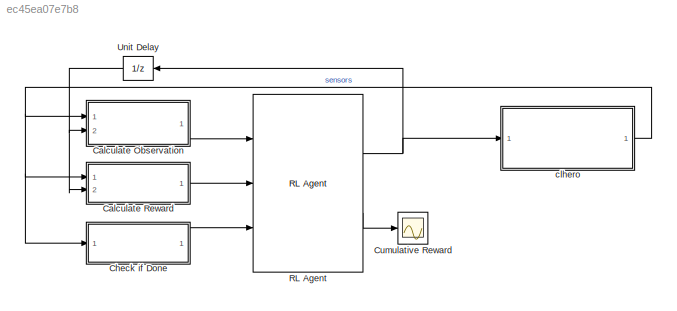
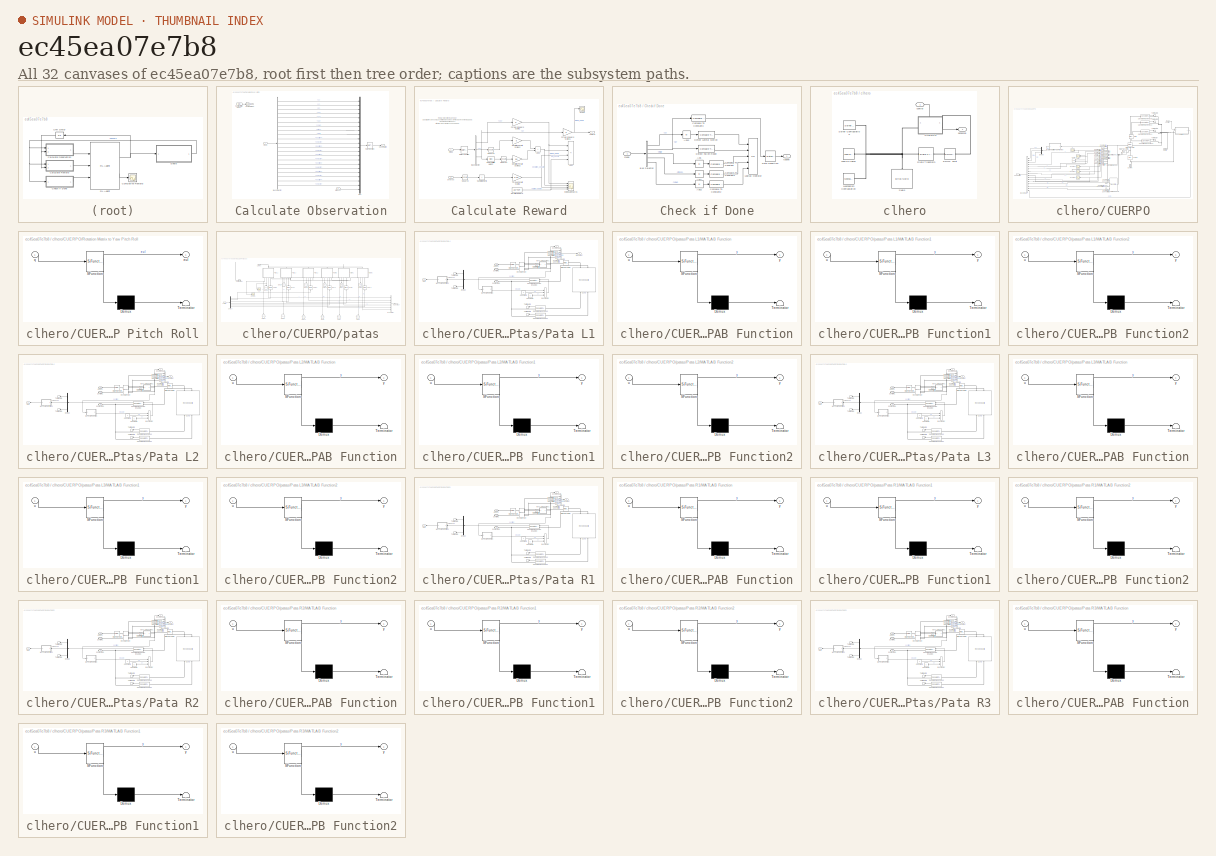
[diagram: thumbnail index - all 32 canvases of the model, root first then tree order]
MODEL slx_ec45ea07e7b8
KIND model
CONFIG AbsTol = auto
CONFIG EnableMultiTasking = off
CONFIG FixedStep = auto
CONFIG MaxStep = auto
CONFIG MinStep = auto
CONFIG RelTol = 1e-3
CONFIG SampleTimeConstraint = Unconstrained
CONFIG Solver = VariableStepAuto
CONFIG SolverName = VariableStepAuto
CONFIG StartTime = 0.0
CONFIG StopTime = 10.0
BLOCK [SubSystem] Calculate Observation
  Ports = [2, 1]
  RequestExecContextInheritance = off
BLOCK [BusSelector] Calculate Observation/Bus Selector
  OutputSignals = X,Y,Z,VX,VY,VZ,Yaw,Pitch,Roll,LEGS.L1.position,LEGS.L1.velocity,LEGS.L2.position,LEGS.L2.velocity,LEGS.L3.position,LEGS.L3.velocity,LEGS.R1.position,LEGS.R1.velocity,LEGS.R2.position,LEGS.R2.velocity,LEGS.R3.position,LEGS.R3.velocity
  Ports = [1, 21]
BLOCK [Mux] Calculate Observation/Mux
  DisplayOption = bar
  Inputs = 22
  Ports = [22, 1]
BLOCK [RateTransition] Calculate Observation/Rate Transition
BLOCK [Gain] Calculate Observation/Scale Height
  Commented = through
  Gain = 1/0.05
BLOCK [Bias] Calculate Observation/Subtract Initial Height
  Bias = -init_height/100
  Commented = through
  SaturateOnIntegerOverflow = off
BLOCK [Inport] Calculate Observation/meas
BLOCK [Outport] Calculate Observation/observation
  VectorParamsAs1DForOutWhenUnconnected = off
BLOCK [Inport] Calculate Observation/prevAct
  Port = 2
BLOCK [SubSystem] Calculate Reward
  Ports = [2, 1]
  RequestExecContextInheritance = off
BLOCK [Sum] Calculate Reward/Add1
  Commented = on
  IconShape = rectangular
  Ports = [2, 1]
BLOCK [Sum] Calculate Reward/Add2
  Commented = on
  IconShape = rectangular
  Inputs = +--+
  Ports = [4, 1]
BLOCK [BusSelector] Calculate Reward/Bus Selector
  OutputSignals = VX,Y,Z
  Ports = [1, 3]
BLOCK [Gain] Calculate Reward/Deviation Penalty Scaling Y
  Commented = on
  Gain = 3
BLOCK [Gain] Calculate Reward/Deviation Penalty Scaling Z
  Commented = on
  Gain = 50
BLOCK [Constant] Calculate Reward/Duration Reward
  Commented = on
  Value = 25*Ts/Tf
BLOCK [Gain] Calculate Reward/Forward Reward Scaling
  Commented = on
BLOCK [Gain] Calculate Reward/Forward Reward Scaling1
BLOCK [Scope] Calculate Reward/Individual Rewards
  Commented = on
  Floating = off
  NumInputPorts = 4
  Ports = [4]
  ScopeSpecificationString = Simulink.scopes.TimeScopeBlockCfg('CurrentConfiguration', extmgr.ConfigurationSet(extmgr.Configuration('Core','General UI',true),extmgr.Configuration('Core','Source UI',true),extmgr.Configuration('Sources','WiredSimulink',true,'DataLoggingVariableName','ScopeData1'),extmgr.Configuration('Visuals','Time Domain',true,'SerializedDisplays',{struct('MinYLimReal','-0.10269','MaxYLimReal','0.92421','YLab...<+1411ch>
BLOCK [RateTransition] Calculate Reward/Rate Transition
  OutPortSampleTime = Ts
BLOCK [Scope] Calculate Reward/Scope
  Floating = off
  NumInputPorts = 1
  Ports = [1]
  ScopeSpecificationString = Simulink.scopes.TimeScopeBlockCfg('CurrentConfiguration', extmgr.ConfigurationSet(extmgr.Configuration('Core','General UI',true),extmgr.Configuration('Core','Source UI',true),extmgr.Configuration('Sources','WiredSimulink',true,'DataLoggingVariableName','ScopeData3'),extmgr.Configuration('Visuals','Time Domain',true),extmgr.Configuration('Tools','Plot Navigation',true),extmgr.Configuration('Tools',...<+40ch>
BLOCK [Math] Calculate Reward/Square2
  Commented = on
  Operator = square
  Ports = [1, 1]
  SignedPower = on
BLOCK [Math] Calculate Reward/Square3
  Commented = on
  Operator = square
  Ports = [1, 1]
  SignedPower = on
BLOCK [Math] Calculate Reward/Square4
  Commented = on
  Operator = square
  Ports = [1, 1]
  SignedPower = on
BLOCK [Bias] Calculate Reward/Subtract Initial Height
  Bias = -init_height/100
  Commented = on
  SaturateOnIntegerOverflow = off
BLOCK [Sum] Calculate Reward/Sum of Elements
  Commented = on
  IconShape = rectangular
  Inputs = +
  Ports = [1, 1]
BLOCK [Gain] Calculate Reward/Torque Penalty Scaling
  Commented = on
  Gain = 0.02
BLOCK [Inport] Calculate Reward/meas
BLOCK [Inport] Calculate Reward/prevAct
  Port = 2
BLOCK [Outport] Calculate Reward/reward
  VectorParamsAs1DForOutWhenUnconnected = off
BLOCK [SubSystem] Check if Done
  Ports = [1, 1]
  RequestExecContextInheritance = off
BLOCK [Abs] Check if Done/Abs
  SaturateOnIntegerOverflow = off
BLOCK [Abs] Check if Done/Abs1
  SaturateOnIntegerOverflow = off
BLOCK [Abs] Check if Done/Abs2
  SaturateOnIntegerOverflow = off
BLOCK [Abs] Check if Done/Abs3
  SaturateOnIntegerOverflow = off
BLOCK [BusSelector] Check if Done/Bus Selector
  OutputSignals = Y,Z,Roll,Pitch,Yaw
  Ports = [1, 5]
BLOCK [Reference] Check if Done/Compare To Constant  REF=simulink/Logic and Bit
Operations/Compare
To Constant
  Ports = [1, 1]
  SourceBlock = simulink/Logic and Bit\nOperations/Compare\nTo Constant
  SourceProductBaseCode = SL
  SourceType = Compare To Constant
BLOCK [Reference] Check if Done/Compare To Constant1  REF=simulink/Logic and Bit
Operations/Compare
To Constant
  Ports = [1, 1]
  SourceBlock = simulink/Logic and Bit\nOperations/Compare\nTo Constant
  SourceProductBaseCode = SL
  SourceType = Compare To Constant
BLOCK [Reference] Check if Done/Compare To Constant2  REF=simulink/Logic and Bit
Operations/Compare
To Constant
  Ports = [1, 1]
  SourceBlock = simulink/Logic and Bit\nOperations/Compare\nTo Constant
  SourceProductBaseCode = SL
  SourceType = Compare To Constant
BLOCK [Reference] Check if Done/Compare To Constant3  REF=simulink/Logic and Bit
Operations/Compare
To Constant
  Ports = [1, 1]
  SourceBlock = simulink/Logic and Bit\nOperations/Compare\nTo Constant
  SourceProductBaseCode = SL
  SourceType = Compare To Constant
BLOCK [Reference] Check if Done/Detect Fallen Robot  REF=simulink/Logic and Bit
Operations/Compare
To Constant
  Ports = [1, 1]
  SourceBlock = simulink/Logic and Bit\nOperations/Compare\nTo Constant
  SourceProductBaseCode = SL
  SourceType = Compare To Constant
BLOCK [Reference] Check if Done/Detect Lateral Motion  REF=simulink/Logic and Bit
Operations/Compare
To Constant
  Ports = [1, 1]
  SourceBlock = simulink/Logic and Bit\nOperations/Compare\nTo Constant
  SourceProductBaseCode = SL
  SourceType = Compare To Constant
BLOCK [Logic] Check if Done/Logical Operator
  AllPortsSameDT = off
  Inputs = 5
  Operator = OR
  OutDataTypeStr = boolean
  Ports = [5, 1]
BLOCK [RateTransition] Check if Done/Rate Transition
BLOCK [Outport] Check if Done/isdone
  VectorParamsAs1DForOutWhenUnconnected = off
BLOCK [Inport] Check if Done/meas
BLOCK [Scope] Cumulative Reward
  Floating = off
  NumInputPorts = 1
  Ports = [1]
  ScopeSpecificationString = Simulink.scopes.TimeScopeBlockCfg('CurrentConfiguration', extmgr.ConfigurationSet(extmgr.Configuration('Core','General UI',true),extmgr.Configuration('Core','Source UI',true),extmgr.Configuration('Sources','WiredSimulink',true,'DataLoggingVariableName','ScopeData2'),extmgr.Configuration('Visuals','Time Domain',true,'SerializedDisplays',{struct('MinYLimReal','-10.78489','MaxYLimReal','97.06402','YL...<+1419ch>
BLOCK [Reference] RL Agent  REF=rllib/RL Agent
  Ports = [3, 2]
  SourceBlock = rllib/RL Agent
  SourceProductBaseCode = RL
  SourceType = RL Agent
BLOCK [UnitDelay] Unit Delay
  HasFrameUpgradeWarning = on
  SampleTime = -1
BLOCK [SubSystem] clhero
  Ports = [1, 1]
  RequestExecContextInheritance = off
BLOCK [Reference] clhero/6-DOF Joint  REF=sm_lib/Joints/6-DOF Joint
  Ports = [0, 0, 0, 0, 0, 1, 1]
  SourceBlock = sm_lib/Joints/6-DOF Joint
  SourceProductBaseCode = MS
  SourceType = 6-DOF Joint
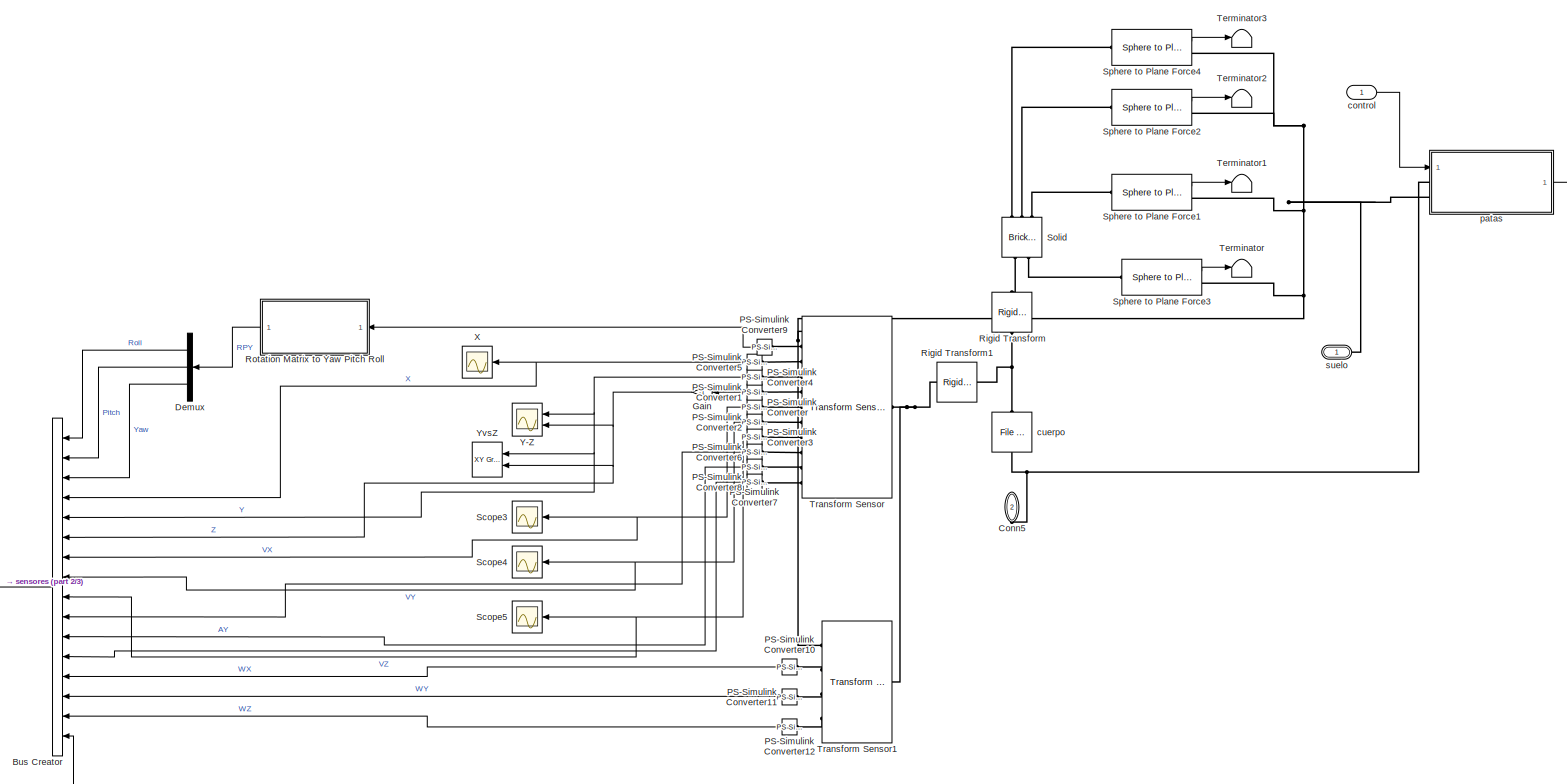
[diagram: clhero/CUERPO - part 1/3, most of the canvas]
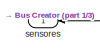
[diagram: clhero/CUERPO - part 2/3, bottom left region]
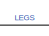
[diagram: clhero/CUERPO - part 3/3, bottom center region]
BLOCK [SubSystem] clhero/CUERPO
  PortSchema = {"entries":[{"content":{"sides":[{"content":{"connectorIds":["LConn1"]},"type":"ConnectorPlacement.EquallySpacedRectSide","uuid":"c67c066a-e5f7-48fe-8e5c-e26201b1f572"},{"content":{"connectorIds":["RConn1","Out1"],"side":"RIGHT"},"type":"ConnectorPlacement.EquallySpacedRectSide","uuid":"d4d559cc-1ab3-43ed-97a9-ad287b5200d5"},{"content":{"connectorIds":["In1"],"side":"TOP"},"type":"ConnectorPlaceme...<+259ch>
  Ports = [1, 1, 0, 0, 0, 1, 1]
  RequestExecContextInheritance = off
BLOCK [BusCreator] clhero/CUERPO/Bus Creator
  DisplayOption = bar
  InheritFromInputs = on
  Inputs = 16
  Ports = [16, 1]
BLOCK [PMIOPort] clhero/CUERPO/Conn5
  NameLocation = left
  Port = 2
  Side = Right
BLOCK [Demux] clhero/CUERPO/Demux
  Outputs = 3
  Ports = [1, 3]
BLOCK [Gain] clhero/CUERPO/Gain
  Gain = -1
  NameLocation = top
BLOCK [Reference] clhero/CUERPO/PS-Simulink Converter  REF=nesl_utility/PS-Simulink
Converter
  NameLocation = top
  Ports = [0, 1, 0, 0, 0, 1]
  SourceBlock = nesl_utility/PS-Simulink\nConverter
  SourceProductBaseCode = SS
  SourceType = PS-Simulink\nConverter
BLOCK [Reference] clhero/CUERPO/PS-Simulink Converter1  REF=nesl_utility/PS-Simulink
Converter
  NameLocation = top
  Ports = [0, 1, 0, 0, 0, 1]
  SourceBlock = nesl_utility/PS-Simulink\nConverter
  SourceProductBaseCode = SS
  SourceType = PS-Simulink\nConverter
BLOCK [Reference] clhero/CUERPO/PS-Simulink Converter10  REF=nesl_utility/PS-Simulink
Converter
  NameLocation = top
  Ports = [0, 1, 0, 0, 0, 1]
  SourceBlock = nesl_utility/PS-Simulink\nConverter
  SourceProductBaseCode = SS
  SourceType = PS-Simulink\nConverter
BLOCK [Reference] clhero/CUERPO/PS-Simulink Converter11  REF=nesl_utility/PS-Simulink
Converter
  NameLocation = top
  Ports = [0, 1, 0, 0, 0, 1]
  SourceBlock = nesl_utility/PS-Simulink\nConverter
  SourceProductBaseCode = SS
  SourceType = PS-Simulink\nConverter
BLOCK [Reference] clhero/CUERPO/PS-Simulink Converter12  REF=nesl_utility/PS-Simulink
Converter
  NameLocation = top
  Ports = [0, 1, 0, 0, 0, 1]
  SourceBlock = nesl_utility/PS-Simulink\nConverter
  SourceProductBaseCode = SS
  SourceType = PS-Simulink\nConverter
BLOCK [Reference] clhero/CUERPO/PS-Simulink Converter2  REF=nesl_utility/PS-Simulink
Converter
  NameLocation = top
  Ports = [0, 1, 0, 0, 0, 1]
  SourceBlock = nesl_utility/PS-Simulink\nConverter
  SourceProductBaseCode = SS
  SourceType = PS-Simulink\nConverter
BLOCK [Reference] clhero/CUERPO/PS-Simulink Converter3  REF=nesl_utility/PS-Simulink
Converter
  NameLocation = top
  Ports = [0, 1, 0, 0, 0, 1]
  SourceBlock = nesl_utility/PS-Simulink\nConverter
  SourceProductBaseCode = SS
  SourceType = PS-Simulink\nConverter
BLOCK [Reference] clhero/CUERPO/PS-Simulink Converter4  REF=nesl_utility/PS-Simulink
Converter
  NameLocation = top
  Ports = [0, 1, 0, 0, 0, 1]
  SourceBlock = nesl_utility/PS-Simulink\nConverter
  SourceProductBaseCode = SS
  SourceType = PS-Simulink\nConverter
BLOCK [Reference] clhero/CUERPO/PS-Simulink Converter5  REF=nesl_utility/PS-Simulink
Converter
  NameLocation = top
  Ports = [0, 1, 0, 0, 0, 1]
  SourceBlock = nesl_utility/PS-Simulink\nConverter
  SourceProductBaseCode = SS
  SourceType = PS-Simulink\nConverter
BLOCK [Reference] clhero/CUERPO/PS-Simulink Converter6  REF=nesl_utility/PS-Simulink
Converter
  NameLocation = top
  Ports = [0, 1, 0, 0, 0, 1]
  SourceBlock = nesl_utility/PS-Simulink\nConverter
  SourceProductBaseCode = SS
  SourceType = PS-Simulink\nConverter
BLOCK [Reference] clhero/CUERPO/PS-Simulink Converter7  REF=nesl_utility/PS-Simulink
Converter
  NameLocation = top
  Ports = [0, 1, 0, 0, 0, 1]
  SourceBlock = nesl_utility/PS-Simulink\nConverter
  SourceProductBaseCode = SS
  SourceType = PS-Simulink\nConverter
BLOCK [Reference] clhero/CUERPO/PS-Simulink Converter8  REF=nesl_utility/PS-Simulink
Converter
  NameLocation = top
  Ports = [0, 1, 0, 0, 0, 1]
  SourceBlock = nesl_utility/PS-Simulink\nConverter
  SourceProductBaseCode = SS
  SourceType = PS-Simulink\nConverter
BLOCK [Reference] clhero/CUERPO/PS-Simulink Converter9  REF=nesl_utility/PS-Simulink
Converter
  NameLocation = top
  Ports = [0, 1, 0, 0, 0, 1]
  SourceBlock = nesl_utility/PS-Simulink\nConverter
  SourceProductBaseCode = SS
  SourceType = PS-Simulink\nConverter
BLOCK [Reference] clhero/CUERPO/Rigid Transform  REF=sm_lib/Frames and
Transforms/Rigid
Transform
  NameLocation = right
  Ports = [0, 0, 0, 0, 0, 1, 1]
  SourceBlock = sm_lib/Frames and\nTransforms/Rigid\nTransform
  SourceProductBaseCode = MS
  SourceType = Rigid\nTransform
BLOCK [Reference] clhero/CUERPO/Rigid Transform1  REF=sm_lib/Frames and
Transforms/Rigid
Transform
  NameLocation = top
  Ports = [0, 0, 0, 0, 0, 1, 1]
  SourceBlock = sm_lib/Frames and\nTransforms/Rigid\nTransform
  SourceProductBaseCode = MS
  SourceType = Rigid\nTransform
BLOCK [SubSystem] clhero/CUERPO/Rotation Matrix to Yaw Pitch Roll
  ErrorFcn = Stateflow.Translate.translate
  PermitHierarchicalResolution = ExplicitOnly
  Ports = [1, 1]
  RequestExecContextInheritance = off
  SFBlockType = MATLAB Function
  TreatAsAtomicUnit = on
BLOCK [Demux] clhero/CUERPO/Rotation Matrix to Yaw Pitch Roll/ Demux 
  Outputs = 1
  Ports = [1, 1]
BLOCK [S-Function] clhero/CUERPO/Rotation Matrix to Yaw Pitch Roll/ SFunction 
  EnableBusSupport = on
  FunctionName = sf_sfun
  PortCounts = [1 2]
  Ports = [1, 2]
  SFcnIsStateOwnerBlock = off
  SFunctionDeploymentMode = off
  Tag = Stateflow S-Function 20
BLOCK [Terminator] clhero/CUERPO/Rotation Matrix to Yaw Pitch Roll/ Terminator 
BLOCK [Outport] clhero/CUERPO/Rotation Matrix to Yaw Pitch Roll/eul
  VectorParamsAs1DForOutWhenUnconnected = off
BLOCK [Inport] clhero/CUERPO/Rotation Matrix to Yaw Pitch Roll/q
BLOCK [Scope] clhero/CUERPO/Scope3
  Floating = off
  NameLocation = top
  NumInputPorts = 1
  Ports = [1]
  ScopeSpecificationString = Simulink.scopes.TimeScopeBlockCfg('CurrentConfiguration', extmgr.ConfigurationSet(extmgr.Configuration('Core','General UI',true),extmgr.Configuration('Core','Source UI',true),extmgr.Configuration('Sources','WiredSimulink',true,'DataLoggingVariableName','ScopeData4'),extmgr.Configuration('Visuals','Time Domain',true,'SerializedDisplays',{struct('MinYLimReal','-0.02463','MaxYLimReal','0.0322','YLabe...<+1403ch>
BLOCK [Scope] clhero/CUERPO/Scope4
  Floating = off
  NameLocation = top
  NumInputPorts = 1
  Ports = [1]
  ScopeSpecificationString = Simulink.scopes.TimeScopeBlockCfg('CurrentConfiguration', extmgr.ConfigurationSet(extmgr.Configuration('Core','General UI',true),extmgr.Configuration('Core','Source UI',true),extmgr.Configuration('Sources','WiredSimulink',true,'DataLoggingVariableName','ScopeData5'),extmgr.Configuration('Visuals','Time Domain',true,'SerializedDisplays',{struct('MinYLimReal','-0.45489','MaxYLimReal','0.92755','YLab...<+1408ch>
BLOCK [Scope] clhero/CUERPO/Scope5
  Floating = off
  NameLocation = top
  NumInputPorts = 1
  Ports = [1]
  ScopeSpecificationString = Simulink.scopes.TimeScopeBlockCfg('CurrentConfiguration', extmgr.ConfigurationSet(extmgr.Configuration('Core','General UI',true),extmgr.Configuration('Core','Source UI',true),extmgr.Configuration('Sources','WiredSimulink',true,'DataLoggingVariableName','ScopeData6'),extmgr.Configuration('Visuals','Time Domain',true,'SerializedDisplays',{struct('MinYLimReal','-0.60444','MaxYLimReal','0.55672','YLab...<+1409ch>
BLOCK [Reference] clhero/CUERPO/Solid  REF=sm_lib/Body Elements/Brick Solid
  NameLocation = left
  Ports = [0, 0, 0, 0, 0, 3, 2]
  SourceBlock = sm_lib/Body Elements/Brick Solid
  SourceProductBaseCode = MS
  SourceType = Brick Solid
BLOCK [Reference] clhero/CUERPO/Sphere to Plane Force1  REF=Contact_Forces_Lib/3D/Sphere to Plane Force
  Ports = [0, 1, 0, 0, 0, 1, 1]
  SourceBlock = Contact_Forces_Lib/3D/Sphere to Plane Force
  SourceProductName = Simscape Multibody Contact Forces Library
  SourceType = Sphere to Plane Force
BLOCK [Reference] clhero/CUERPO/Sphere to Plane Force2  REF=Contact_Forces_Lib/3D/Sphere to Plane Force
  Ports = [0, 1, 0, 0, 0, 1, 1]
  SourceBlock = Contact_Forces_Lib/3D/Sphere to Plane Force
  SourceProductName = Simscape Multibody Contact Forces Library
  SourceType = Sphere to Plane Force
BLOCK [Reference] clhero/CUERPO/Sphere to Plane Force3  REF=Contact_Forces_Lib/3D/Sphere to Plane Force
  Ports = [0, 1, 0, 0, 0, 1, 1]
  SourceBlock = Contact_Forces_Lib/3D/Sphere to Plane Force
  SourceProductName = Simscape Multibody Contact Forces Library
  SourceType = Sphere to Plane Force
BLOCK [Reference] clhero/CUERPO/Sphere to Plane Force4  REF=Contact_Forces_Lib/3D/Sphere to Plane Force
  Ports = [0, 1, 0, 0, 0, 1, 1]
  SourceBlock = Contact_Forces_Lib/3D/Sphere to Plane Force
  SourceProductName = Simscape Multibody Contact Forces Library
  SourceType = Sphere to Plane Force
BLOCK [Terminator] clhero/CUERPO/Terminator
  NameLocation = top
BLOCK [Terminator] clhero/CUERPO/Terminator1
  NameLocation = top
BLOCK [Terminator] clhero/CUERPO/Terminator2
  NameLocation = top
BLOCK [Terminator] clhero/CUERPO/Terminator3
  NameLocation = top
BLOCK [Reference] clhero/CUERPO/Transform Sensor  REF=sm_lib/Frames and
Transforms/Transform
Sensor
  NameLocation = top
  Ports = [0, 0, 0, 0, 0, 1, 11]
  SourceBlock = sm_lib/Frames and\nTransforms/Transform\nSensor
  SourceProductBaseCode = MS
  SourceType = Transform\nSensor
BLOCK [Reference] clhero/CUERPO/Transform Sensor1  REF=sm_lib/Frames and
Transforms/Transform
Sensor
  Ports = [0, 0, 0, 0, 0, 1, 4]
  SourceBlock = sm_lib/Frames and\nTransforms/Transform\nSensor
  SourceProductBaseCode = MS
  SourceType = Transform\nSensor
BLOCK [Scope] clhero/CUERPO/X
  Floating = off
  NameLocation = top
  NumInputPorts = 1
  Ports = [1]
  ScopeSpecificationString = Simulink.scopes.TimeScopeBlockCfg('CurrentConfiguration', extmgr.ConfigurationSet(extmgr.Configuration('Core','General UI',true),extmgr.Configuration('Core','Source UI',true),extmgr.Configuration('Sources','WiredSimulink',true,'DataLoggingVariableName','ScopeData2'),extmgr.Configuration('Visuals','Time Domain',true,'SerializedDisplays',{struct('MinYLimReal','-1.00000','MaxYLimReal','1.00000','YLab...<+1360ch>
BLOCK [Scope] clhero/CUERPO/Y-Z
  Floating = off
  NameLocation = top
  NumInputPorts = 2
  Ports = [2]
  ScopeSpecificationString = Simulink.scopes.TimeScopeBlockCfg('CurrentConfiguration', extmgr.ConfigurationSet(extmgr.Configuration('Core','General UI',true,'FigureColor',[1 1 1]),extmgr.Configuration('Core','Source UI',true),extmgr.Configuration('Sources','WiredSimulink',true,'DataLoggingVariableName','ScopeData1'),extmgr.Configuration('Visuals','Time Domain',true,'SerializedDisplays',{struct('MinYLimReal','-0.28236','MaxYLi...<+1519ch>
BLOCK [Reference] clhero/CUERPO/YvsZ  REF=simulink/Sinks/XY Graph
  NameLocation = top
  Ports = [2]
  SourceBlock = simulink/Sinks/XY Graph
  SourceProductBaseCode = SL
  SourceType = XY scope.
BLOCK [Inport] clhero/CUERPO/control
BLOCK [Reference] clhero/CUERPO/cuerpo  REF=sm_lib/Body Elements/File Solid
  NameLocation = left
  Ports = [0, 0, 0, 0, 0, 1, 1]
  SourceBlock = sm_lib/Body Elements/File Solid
  SourceProductBaseCode = MS
  SourceType = File Solid
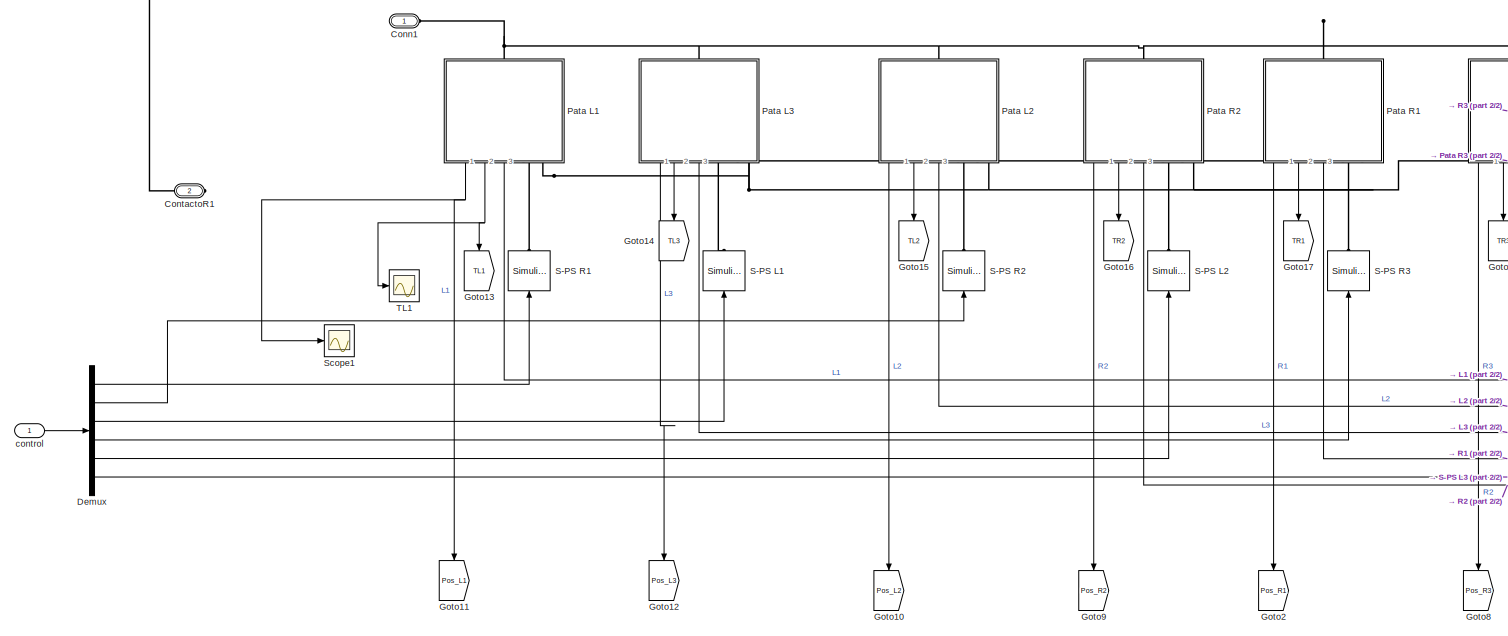
[diagram: clhero/CUERPO/patas - part 1/2, most of the canvas]
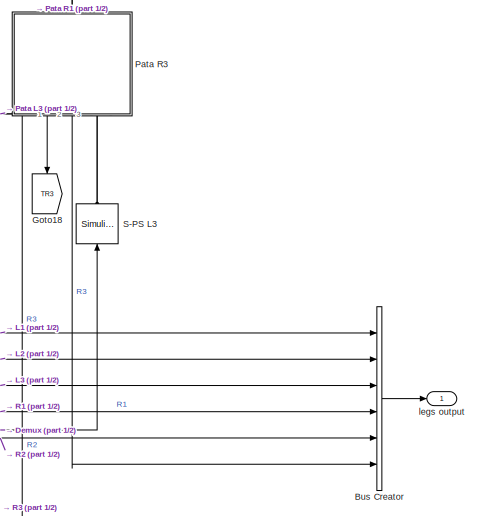
[diagram: clhero/CUERPO/patas - part 2/2, right side, full height]
BLOCK [SubSystem] clhero/CUERPO/patas
  Ports = [1, 1, 0, 0, 0, 2]
  RequestExecContextInheritance = off
BLOCK [BusCreator] clhero/CUERPO/patas/Bus Creator
  DisplayOption = bar
  InheritFromInputs = on
  Inputs = 6
  Ports = [6, 1]
BLOCK [PMIOPort] clhero/CUERPO/patas/Conn1
  Side = Left
BLOCK [PMIOPort] clhero/CUERPO/patas/ContactoR1
  Port = 2
  Side = Left
BLOCK [Demux] clhero/CUERPO/patas/Demux
  Outputs = 6
  Ports = [1, 6]
BLOCK [Goto] clhero/CUERPO/patas/Goto10
  GotoTag = Pos_L2
  NameLocation = left
BLOCK [Goto] clhero/CUERPO/patas/Goto11
  GotoTag = Pos_L1
  NameLocation = left
BLOCK [Goto] clhero/CUERPO/patas/Goto12
  GotoTag = Pos_L3
  NameLocation = left
BLOCK [Goto] clhero/CUERPO/patas/Goto13
  GotoTag = TL1
  NameLocation = left
BLOCK [Goto] clhero/CUERPO/patas/Goto14
  GotoTag = TL3
  NameLocation = left
BLOCK [Goto] clhero/CUERPO/patas/Goto15
  GotoTag = TL2
  NameLocation = left
BLOCK [Goto] clhero/CUERPO/patas/Goto16
  GotoTag = TR2
  NameLocation = left
BLOCK [Goto] clhero/CUERPO/patas/Goto17
  GotoTag = TR1
  NameLocation = left
BLOCK [Goto] clhero/CUERPO/patas/Goto18
  GotoTag = TR3
  NameLocation = left
BLOCK [Goto] clhero/CUERPO/patas/Goto2
  GotoTag = Pos_R1
  NameLocation = left
BLOCK [Goto] clhero/CUERPO/patas/Goto8
  GotoTag = Pos_R3
  NameLocation = left
BLOCK [Goto] clhero/CUERPO/patas/Goto9
  GotoTag = Pos_R2
  NameLocation = left
BLOCK [SubSystem] clhero/CUERPO/patas/Pata L1
  NameLocation = left
  Ports = [0, 3, 0, 0, 0, 1, 2]
  RequestExecContextInheritance = off
BLOCK [BusCreator] clhero/CUERPO/patas/Pata L1/Bus Creator
  DisplayOption = bar
  InheritFromInputs = on
  Inputs = 3
  Ports = [3, 1]
BLOCK [BusCreator] clhero/CUERPO/patas/Pata L1/Bus Creator1
  DisplayOption = bar
  InheritFromInputs = on
  Inputs = 4
  Ports = [4, 1]
BLOCK [Reference] clhero/CUERPO/patas/Pata L1/C-Leg  REF=sm_lib/Body Elements/Revolved Solid
  NameLocation = right
  Ports = [0, 0, 0, 0, 0, 2, 2]
  SourceBlock = sm_lib/Body Elements/Revolved Solid
  SourceProductBaseCode = MS
  SourceType = Revolved Solid
BLOCK [PMIOPort] clhero/CUERPO/patas/Pata L1/Conn1
  Port = 2
  Side = Left
BLOCK [Constant] clhero/CUERPO/patas/Pata L1/Constant1
  Value = 0
BLOCK [Constant] clhero/CUERPO/patas/Pata L1/Constant2
  Value = 0
BLOCK [PMIOPort] clhero/CUERPO/patas/Pata L1/ContactoR1
  Port = 3
  Side = Right
BLOCK [PMIOPort] clhero/CUERPO/patas/Pata L1/Control R1
  Side = Right
BLOCK [Demux] clhero/CUERPO/patas/Pata L1/Demux
  NameLocation = top
  Outputs = 3
  Ports = [1, 3]
BLOCK [SubSystem] clhero/CUERPO/patas/Pata L1/MATLAB Function
  ErrorFcn = Stateflow.Translate.translate
  PermitHierarchicalResolution = ExplicitOnly
  Ports = [1, 1]
  RequestExecContextInheritance = off
  SFBlockType = MATLAB Function
  TreatAsAtomicUnit = on
BLOCK [Demux] clhero/CUERPO/patas/Pata L1/MATLAB Function/ Demux 
  Outputs = 1
  Ports = [1, 1]
BLOCK [S-Function] clhero/CUERPO/patas/Pata L1/MATLAB Function/ SFunction 
  EnableBusSupport = on
  FunctionName = sf_sfun
  PortCounts = [1 2]
  Ports = [1, 2]
  SFcnIsStateOwnerBlock = off
  SFunctionDeploymentMode = off
  Tag = Stateflow S-Function 2
BLOCK [Terminator] clhero/CUERPO/patas/Pata L1/MATLAB Function/ Terminator 
BLOCK [Inport] clhero/CUERPO/patas/Pata L1/MATLAB Function/u
BLOCK [Outport] clhero/CUERPO/patas/Pata L1/MATLAB Function/y
  VectorParamsAs1DForOutWhenUnconnected = off
BLOCK [SubSystem] clhero/CUERPO/patas/Pata L1/MATLAB Function1
  ErrorFcn = Stateflow.Translate.translate
  PermitHierarchicalResolution = ExplicitOnly
  Ports = [1, 1]
  RequestExecContextInheritance = off
  SFBlockType = MATLAB Function
  TreatAsAtomicUnit = on
BLOCK [Demux] clhero/CUERPO/patas/Pata L1/MATLAB Function1/ Demux 
  Outputs = 1
  Ports = [1, 1]
BLOCK [S-Function] clhero/CUERPO/patas/Pata L1/MATLAB Function1/ SFunction 
  EnableBusSupport = on
  FunctionName = sf_sfun
  PortCounts = [1 2]
  Ports = [1, 2]
  SFcnIsStateOwnerBlock = off
  SFunctionDeploymentMode = off
  Tag = Stateflow S-Function 1
BLOCK [Terminator] clhero/CUERPO/patas/Pata L1/MATLAB Function1/ Terminator 
BLOCK [Inport] clhero/CUERPO/patas/Pata L1/MATLAB Function1/u
BLOCK [Outport] clhero/CUERPO/patas/Pata L1/MATLAB Function1/y
  VectorParamsAs1DForOutWhenUnconnected = off
BLOCK [SubSystem] clhero/CUERPO/patas/Pata L1/MATLAB Function2
  ErrorFcn = Stateflow.Translate.translate
  NameLocation = top
  PermitHierarchicalResolution = ExplicitOnly
  Ports = [1, 1]
  RequestExecContextInheritance = off
  SFBlockType = MATLAB Function
  TreatAsAtomicUnit = on
BLOCK [Demux] clhero/CUERPO/patas/Pata L1/MATLAB Function2/ Demux 
  Outputs = 1
  Ports = [1, 1]
BLOCK [S-Function] clhero/CUERPO/patas/Pata L1/MATLAB Function2/ SFunction 
  EnableBusSupport = on
  FunctionName = sf_sfun
  PortCounts = [1 2]
  Ports = [1, 2]
  SFcnIsStateOwnerBlock = off
  SFunctionDeploymentMode = off
  Tag = Stateflow S-Function 13
BLOCK [Terminator] clhero/CUERPO/patas/Pata L1/MATLAB Function2/ Terminator 
BLOCK [Inport] clhero/CUERPO/patas/Pata L1/MATLAB Function2/u
BLOCK [Outport] clhero/CUERPO/patas/Pata L1/MATLAB Function2/y
  VectorParamsAs1DForOutWhenUnconnected = off
BLOCK [Outport] clhero/CUERPO/patas/Pata L1/Out2
  NameLocation = top
  Port = 2
  VectorParamsAs1DForOutWhenUnconnected = off
BLOCK [Reference] clhero/CUERPO/patas/Pata L1/PS-Simulink Converter  REF=nesl_utility/PS-Simulink
Converter
  Ports = [0, 1, 0, 0, 0, 1]
  SourceBlock = nesl_utility/PS-Simulink\nConverter
  SourceProductBaseCode = SS
  SourceType = PS-Simulink\nConverter
BLOCK [Reference] clhero/CUERPO/patas/Pata L1/PS-Simulink Converter1  REF=nesl_utility/PS-Simulink
Converter
  Ports = [0, 1, 0, 0, 0, 1]
  SourceBlock = nesl_utility/PS-Simulink\nConverter
  SourceProductBaseCode = SS
  SourceType = PS-Simulink\nConverter
BLOCK [Reference] clhero/CUERPO/patas/Pata L1/PS-Simulink Converter2  REF=nesl_utility/PS-Simulink
Converter
  Ports = [0, 1, 0, 0, 0, 1]
  SourceBlock = nesl_utility/PS-Simulink\nConverter
  SourceProductBaseCode = SS
  SourceType = PS-Simulink\nConverter
BLOCK [Reference] clhero/CUERPO/patas/Pata L1/PS-Simulink Converter3  REF=nesl_utility/PS-Simulink
Converter
  Ports = [0, 1, 0, 0, 0, 1]
  SourceBlock = nesl_utility/PS-Simulink\nConverter
  SourceProductBaseCode = SS
  SourceType = PS-Simulink\nConverter
BLOCK [Reference] clhero/CUERPO/patas/Pata L1/Revolute Joint  REF=sm_lib/Joints/Revolute Joint
  Ports = [0, 0, 0, 0, 0, 2, 5]
  SourceBlock = sm_lib/Joints/Revolute Joint
  SourceProductBaseCode = MS
  SourceType = Revolute Joint
BLOCK [Reference] clhero/CUERPO/patas/Pata L1/Rigid Transform  REF=sm_lib/Frames and
Transforms/Rigid
Transform
  Ports = [0, 0, 0, 0, 0, 1, 1]
  SourceBlock = sm_lib/Frames and\nTransforms/Rigid\nTransform
  SourceProductBaseCode = MS
  SourceType = Rigid\nTransform
BLOCK [Reference] clhero/CUERPO/patas/Pata L1/Rigid Transform1  REF=sm_lib/Frames and
Transforms/Rigid
Transform
  NameLocation = top
  Ports = [0, 0, 0, 0, 0, 1, 1]
  SourceBlock = sm_lib/Frames and\nTransforms/Rigid\nTransform
  SourceProductBaseCode = MS
  SourceType = Rigid\nTransform
BLOCK [Reference] clhero/CUERPO/patas/Pata L1/Sphere to Plane Force Enabled  REF=Contact_Forces_Lib/3D/Sphere to Plane Force
Enabled
  Ports = [1, 1, 0, 0, 0, 1, 1]
  SourceBlock = Contact_Forces_Lib/3D/Sphere to Plane Force\nEnabled
  SourceProductName = Simscape Multibody Contact Forces Library
  SourceType = Sphere to Plane Force
BLOCK [Reference] clhero/CUERPO/patas/Pata L1/Sphere to Plane Force2  REF=Contact_Forces_Lib/3D/Sphere to Plane Force
  Ports = [0, 1, 0, 0, 0, 1, 1]
  SourceBlock = Contact_Forces_Lib/3D/Sphere to Plane Force
  SourceProductName = Simscape Multibody Contact Forces Library
  SourceType = Sphere to Plane Force
BLOCK [Reference] clhero/CUERPO/patas/Pata L1/Sphere to Plane Force3  REF=Contact_Forces_Lib/3D/Sphere to Plane Force
  Ports = [0, 1, 0, 0, 0, 1, 1]
  SourceBlock = Contact_Forces_Lib/3D/Sphere to Plane Force
  SourceProductName = Simscape Multibody Contact Forces Library
  SourceType = Sphere to Plane Force
BLOCK [Terminator] clhero/CUERPO/patas/Pata L1/Terminator1
  NameLocation = top
BLOCK [Terminator] clhero/CUERPO/patas/Pata L1/Terminator2
  NameLocation = top
BLOCK [Terminator] clhero/CUERPO/patas/Pata L1/Terminator3
  NameLocation = top
BLOCK [Terminator] clhero/CUERPO/patas/Pata L1/Terminator4
  NameLocation = top
BLOCK [Outport] clhero/CUERPO/patas/Pata L1/leg output
  Port = 3
BLOCK [Outport] clhero/CUERPO/patas/Pata L1/posicion pata
  VectorParamsAs1DForOutWhenUnconnected = off
BLOCK [SubSystem] clhero/CUERPO/patas/Pata L2
  NameLocation = left
  Ports = [0, 3, 0, 0, 0, 1, 2]
  RequestExecContextInheritance = off
BLOCK [BusCreator] clhero/CUERPO/patas/Pata L2/Bus Creator
  DisplayOption = bar
  InheritFromInputs = on
  Inputs = 3
  Ports = [3, 1]
BLOCK [BusCreator] clhero/CUERPO/patas/Pata L2/Bus Creator1
  DisplayOption = bar
  InheritFromInputs = on
  Inputs = 4
  Ports = [4, 1]
BLOCK [Reference] clhero/CUERPO/patas/Pata L2/C-Leg  REF=sm_lib/Body Elements/Revolved Solid
  NameLocation = right
  Ports = [0, 0, 0, 0, 0, 2, 2]
  SourceBlock = sm_lib/Body Elements/Revolved Solid
  SourceProductBaseCode = MS
  SourceType = Revolved Solid
BLOCK [PMIOPort] clhero/CUERPO/patas/Pata L2/Conn1
  Port = 2
  Side = Left
BLOCK [Constant] clhero/CUERPO/patas/Pata L2/Constant1
  Value = 0
BLOCK [Constant] clhero/CUERPO/patas/Pata L2/Constant2
  Value = 0
BLOCK [PMIOPort] clhero/CUERPO/patas/Pata L2/ContactoR1
  Port = 3
  Side = Right
BLOCK [PMIOPort] clhero/CUERPO/patas/Pata L2/Control R1
  Side = Right
BLOCK [Demux] clhero/CUERPO/patas/Pata L2/Demux
  NameLocation = top
  Outputs = 3
  Ports = [1, 3]
BLOCK [SubSystem] clhero/CUERPO/patas/Pata L2/MATLAB Function
  ErrorFcn = Stateflow.Translate.translate
  PermitHierarchicalResolution = ExplicitOnly
  Ports = [1, 1]
  RequestExecContextInheritance = off
  SFBlockType = MATLAB Function
  TreatAsAtomicUnit = on
BLOCK [Demux] clhero/CUERPO/patas/Pata L2/MATLAB Function/ Demux 
  Outputs = 1
  Ports = [1, 1]
BLOCK [S-Function] clhero/CUERPO/patas/Pata L2/MATLAB Function/ SFunction 
  EnableBusSupport = on
  FunctionName = sf_sfun
  PortCounts = [1 2]
  Ports = [1, 2]
  SFcnIsStateOwnerBlock = off
  SFunctionDeploymentMode = off
  Tag = Stateflow S-Function 5
BLOCK [Terminator] clhero/CUERPO/patas/Pata L2/MATLAB Function/ Terminator 
BLOCK [Inport] clhero/CUERPO/patas/Pata L2/MATLAB Function/u
BLOCK [Outport] clhero/CUERPO/patas/Pata L2/MATLAB Function/y
  VectorParamsAs1DForOutWhenUnconnected = off
BLOCK [SubSystem] clhero/CUERPO/patas/Pata L2/MATLAB Function1
  ErrorFcn = Stateflow.Translate.translate
  PermitHierarchicalResolution = ExplicitOnly
  Ports = [1, 1]
  RequestExecContextInheritance = off
  SFBlockType = MATLAB Function
  TreatAsAtomicUnit = on
BLOCK [Demux] clhero/CUERPO/patas/Pata L2/MATLAB Function1/ Demux 
  Outputs = 1
  Ports = [1, 1]
BLOCK [S-Function] clhero/CUERPO/patas/Pata L2/MATLAB Function1/ SFunction 
  EnableBusSupport = on
  FunctionName = sf_sfun
  PortCounts = [1 2]
  Ports = [1, 2]
  SFcnIsStateOwnerBlock = off
  SFunctionDeploymentMode = off
  Tag = Stateflow S-Function 6
BLOCK [Terminator] clhero/CUERPO/patas/Pata L2/MATLAB Function1/ Terminator 
BLOCK [Inport] clhero/CUERPO/patas/Pata L2/MATLAB Function1/u
BLOCK [Outport] clhero/CUERPO/patas/Pata L2/MATLAB Function1/y
  VectorParamsAs1DForOutWhenUnconnected = off
BLOCK [SubSystem] clhero/CUERPO/patas/Pata L2/MATLAB Function2
  ErrorFcn = Stateflow.Translate.translate
  NameLocation = top
  PermitHierarchicalResolution = ExplicitOnly
  Ports = [1, 1]
  RequestExecContextInheritance = off
  SFBlockType = MATLAB Function
  TreatAsAtomicUnit = on
BLOCK [Demux] clhero/CUERPO/patas/Pata L2/MATLAB Function2/ Demux 
  Outputs = 1
  Ports = [1, 1]
BLOCK [S-Function] clhero/CUERPO/patas/Pata L2/MATLAB Function2/ SFunction 
  EnableBusSupport = on
  FunctionName = sf_sfun
  PortCounts = [1 2]
  Ports = [1, 2]
  SFcnIsStateOwnerBlock = off
  SFunctionDeploymentMode = off
  Tag = Stateflow S-Function 16
BLOCK [Terminator] clhero/CUERPO/patas/Pata L2/MATLAB Function2/ Terminator 
BLOCK [Inport] clhero/CUERPO/patas/Pata L2/MATLAB Function2/u
BLOCK [Outport] clhero/CUERPO/patas/Pata L2/MATLAB Function2/y
  VectorParamsAs1DForOutWhenUnconnected = off
BLOCK [Outport] clhero/CUERPO/patas/Pata L2/Out2
  NameLocation = top
  Port = 2
  VectorParamsAs1DForOutWhenUnconnected = off
BLOCK [Reference] clhero/CUERPO/patas/Pata L2/PS-Simulink Converter  REF=nesl_utility/PS-Simulink
Converter
  Ports = [0, 1, 0, 0, 0, 1]
  SourceBlock = nesl_utility/PS-Simulink\nConverter
  SourceProductBaseCode = SS
  SourceType = PS-Simulink\nConverter
BLOCK [Reference] clhero/CUERPO/patas/Pata L2/PS-Simulink Converter1  REF=nesl_utility/PS-Simulink
Converter
  Ports = [0, 1, 0, 0, 0, 1]
  SourceBlock = nesl_utility/PS-Simulink\nConverter
  SourceProductBaseCode = SS
  SourceType = PS-Simulink\nConverter
BLOCK [Reference] clhero/CUERPO/patas/Pata L2/PS-Simulink Converter2  REF=nesl_utility/PS-Simulink
Converter
  Ports = [0, 1, 0, 0, 0, 1]
  SourceBlock = nesl_utility/PS-Simulink\nConverter
  SourceProductBaseCode = SS
  SourceType = PS-Simulink\nConverter
BLOCK [Reference] clhero/CUERPO/patas/Pata L2/PS-Simulink Converter3  REF=nesl_utility/PS-Simulink
Converter
  Ports = [0, 1, 0, 0, 0, 1]
  SourceBlock = nesl_utility/PS-Simulink\nConverter
  SourceProductBaseCode = SS
  SourceType = PS-Simulink\nConverter
BLOCK [Reference] clhero/CUERPO/patas/Pata L2/Revolute Joint  REF=sm_lib/Joints/Revolute Joint
  Ports = [0, 0, 0, 0, 0, 2, 5]
  SourceBlock = sm_lib/Joints/Revolute Joint
  SourceProductBaseCode = MS
  SourceType = Revolute Joint
BLOCK [Reference] clhero/CUERPO/patas/Pata L2/Rigid Transform  REF=sm_lib/Frames and
Transforms/Rigid
Transform
  Ports = [0, 0, 0, 0, 0, 1, 1]
  SourceBlock = sm_lib/Frames and\nTransforms/Rigid\nTransform
  SourceProductBaseCode = MS
  SourceType = Rigid\nTransform
BLOCK [Reference] clhero/CUERPO/patas/Pata L2/Rigid Transform1  REF=sm_lib/Frames and
Transforms/Rigid
Transform
  NameLocation = top
  Ports = [0, 0, 0, 0, 0, 1, 1]
  SourceBlock = sm_lib/Frames and\nTransforms/Rigid\nTransform
  SourceProductBaseCode = MS
  SourceType = Rigid\nTransform
BLOCK [Reference] clhero/CUERPO/patas/Pata L2/Sphere to Plane Force Enabled  REF=Contact_Forces_Lib/3D/Sphere to Plane Force
Enabled
  Ports = [1, 1, 0, 0, 0, 1, 1]
  SourceBlock = Contact_Forces_Lib/3D/Sphere to Plane Force\nEnabled
  SourceProductName = Simscape Multibody Contact Forces Library
  SourceType = Sphere to Plane Force
BLOCK [Reference] clhero/CUERPO/patas/Pata L2/Sphere to Plane Force2  REF=Contact_Forces_Lib/3D/Sphere to Plane Force
  Ports = [0, 1, 0, 0, 0, 1, 1]
  SourceBlock = Contact_Forces_Lib/3D/Sphere to Plane Force
  SourceProductName = Simscape Multibody Contact Forces Library
  SourceType = Sphere to Plane Force
BLOCK [Reference] clhero/CUERPO/patas/Pata L2/Sphere to Plane Force3  REF=Contact_Forces_Lib/3D/Sphere to Plane Force
  Ports = [0, 1, 0, 0, 0, 1, 1]
  SourceBlock = Contact_Forces_Lib/3D/Sphere to Plane Force
  SourceProductName = Simscape Multibody Contact Forces Library
  SourceType = Sphere to Plane Force
BLOCK [Terminator] clhero/CUERPO/patas/Pata L2/Terminator1
  NameLocation = top
BLOCK [Terminator] clhero/CUERPO/patas/Pata L2/Terminator2
  NameLocation = top
BLOCK [Terminator] clhero/CUERPO/patas/Pata L2/Terminator3
  NameLocation = top
BLOCK [Terminator] clhero/CUERPO/patas/Pata L2/Terminator4
  NameLocation = top
BLOCK [Outport] clhero/CUERPO/patas/Pata L2/leg output
  Port = 3
BLOCK [Outport] clhero/CUERPO/patas/Pata L2/posicion pata
  VectorParamsAs1DForOutWhenUnconnected = off
BLOCK [SubSystem] clhero/CUERPO/patas/Pata L3
  NameLocation = left
  Ports = [0, 3, 0, 0, 0, 1, 2]
  RequestExecContextInheritance = off
BLOCK [BusCreator] clhero/CUERPO/patas/Pata L3/Bus Creator
  DisplayOption = bar
  InheritFromInputs = on
  Inputs = 3
  Ports = [3, 1]
BLOCK [BusCreator] clhero/CUERPO/patas/Pata L3/Bus Creator1
  DisplayOption = bar
  InheritFromInputs = on
  Inputs = 4
  Ports = [4, 1]
BLOCK [Reference] clhero/CUERPO/patas/Pata L3/C-Leg  REF=sm_lib/Body Elements/Revolved Solid
  NameLocation = right
  Ports = [0, 0, 0, 0, 0, 2, 2]
  SourceBlock = sm_lib/Body Elements/Revolved Solid
  SourceProductBaseCode = MS
  SourceType = Revolved Solid
BLOCK [PMIOPort] clhero/CUERPO/patas/Pata L3/Conn1
  Port = 2
  Side = Left
BLOCK [Constant] clhero/CUERPO/patas/Pata L3/Constant1
  Value = 0
BLOCK [Constant] clhero/CUERPO/patas/Pata L3/Constant2
  Value = 0
BLOCK [PMIOPort] clhero/CUERPO/patas/Pata L3/ContactoR1
  Port = 3
  Side = Right
BLOCK [PMIOPort] clhero/CUERPO/patas/Pata L3/Control R1
  Side = Right
BLOCK [Demux] clhero/CUERPO/patas/Pata L3/Demux
  NameLocation = top
  Outputs = 3
  Ports = [1, 3]
BLOCK [SubSystem] clhero/CUERPO/patas/Pata L3/MATLAB Function
  ErrorFcn = Stateflow.Translate.translate
  PermitHierarchicalResolution = ExplicitOnly
  Ports = [1, 1]
  RequestExecContextInheritance = off
  SFBlockType = MATLAB Function
  TreatAsAtomicUnit = on
BLOCK [Demux] clhero/CUERPO/patas/Pata L3/MATLAB Function/ Demux 
  Outputs = 1
  Ports = [1, 1]
BLOCK [S-Function] clhero/CUERPO/patas/Pata L3/MATLAB Function/ SFunction 
  EnableBusSupport = on
  FunctionName = sf_sfun
  PortCounts = [1 2]
  Ports = [1, 2]
  SFcnIsStateOwnerBlock = off
  SFunctionDeploymentMode = off
  Tag = Stateflow S-Function 3
BLOCK [Terminator] clhero/CUERPO/patas/Pata L3/MATLAB Function/ Terminator 
BLOCK [Inport] clhero/CUERPO/patas/Pata L3/MATLAB Function/u
BLOCK [Outport] clhero/CUERPO/patas/Pata L3/MATLAB Function/y
  VectorParamsAs1DForOutWhenUnconnected = off
BLOCK [SubSystem] clhero/CUERPO/patas/Pata L3/MATLAB Function1
  ErrorFcn = Stateflow.Translate.translate
  PermitHierarchicalResolution = ExplicitOnly
  Ports = [1, 1]
  RequestExecContextInheritance = off
  SFBlockType = MATLAB Function
  TreatAsAtomicUnit = on
BLOCK [Demux] clhero/CUERPO/patas/Pata L3/MATLAB Function1/ Demux 
  Outputs = 1
  Ports = [1, 1]
BLOCK [S-Function] clhero/CUERPO/patas/Pata L3/MATLAB Function1/ SFunction 
  EnableBusSupport = on
  FunctionName = sf_sfun
  PortCounts = [1 2]
  Ports = [1, 2]
  SFcnIsStateOwnerBlock = off
  SFunctionDeploymentMode = off
  Tag = Stateflow S-Function 4
BLOCK [Terminator] clhero/CUERPO/patas/Pata L3/MATLAB Function1/ Terminator 
BLOCK [Inport] clhero/CUERPO/patas/Pata L3/MATLAB Function1/u
BLOCK [Outport] clhero/CUERPO/patas/Pata L3/MATLAB Function1/y
  VectorParamsAs1DForOutWhenUnconnected = off
BLOCK [SubSystem] clhero/CUERPO/patas/Pata L3/MATLAB Function2
  ErrorFcn = Stateflow.Translate.translate
  NameLocation = top
  PermitHierarchicalResolution = ExplicitOnly
  Ports = [1, 1]
  RequestExecContextInheritance = off
  SFBlockType = MATLAB Function
  TreatAsAtomicUnit = on
BLOCK [Demux] clhero/CUERPO/patas/Pata L3/MATLAB Function2/ Demux 
  Outputs = 1
  Ports = [1, 1]
BLOCK [S-Function] clhero/CUERPO/patas/Pata L3/MATLAB Function2/ SFunction 
  EnableBusSupport = on
  FunctionName = sf_sfun
  PortCounts = [1 2]
  Ports = [1, 2]
  SFcnIsStateOwnerBlock = off
  SFunctionDeploymentMode = off
  Tag = Stateflow S-Function 15
BLOCK [Terminator] clhero/CUERPO/patas/Pata L3/MATLAB Function2/ Terminator 
BLOCK [Inport] clhero/CUERPO/patas/Pata L3/MATLAB Function2/u
BLOCK [Outport] clhero/CUERPO/patas/Pata L3/MATLAB Function2/y
  VectorParamsAs1DForOutWhenUnconnected = off
BLOCK [Outport] clhero/CUERPO/patas/Pata L3/Out2
  NameLocation = top
  Port = 2
  VectorParamsAs1DForOutWhenUnconnected = off
BLOCK [Reference] clhero/CUERPO/patas/Pata L3/PS-Simulink Converter  REF=nesl_utility/PS-Simulink
Converter
  Ports = [0, 1, 0, 0, 0, 1]
  SourceBlock = nesl_utility/PS-Simulink\nConverter
  SourceProductBaseCode = SS
  SourceType = PS-Simulink\nConverter
BLOCK [Reference] clhero/CUERPO/patas/Pata L3/PS-Simulink Converter1  REF=nesl_utility/PS-Simulink
Converter
  Ports = [0, 1, 0, 0, 0, 1]
  SourceBlock = nesl_utility/PS-Simulink\nConverter
  SourceProductBaseCode = SS
  SourceType = PS-Simulink\nConverter
BLOCK [Reference] clhero/CUERPO/patas/Pata L3/PS-Simulink Converter2  REF=nesl_utility/PS-Simulink
Converter
  Ports = [0, 1, 0, 0, 0, 1]
  SourceBlock = nesl_utility/PS-Simulink\nConverter
  SourceProductBaseCode = SS
  SourceType = PS-Simulink\nConverter
BLOCK [Reference] clhero/CUERPO/patas/Pata L3/PS-Simulink Converter3  REF=nesl_utility/PS-Simulink
Converter
  Ports = [0, 1, 0, 0, 0, 1]
  SourceBlock = nesl_utility/PS-Simulink\nConverter
  SourceProductBaseCode = SS
  SourceType = PS-Simulink\nConverter
BLOCK [Reference] clhero/CUERPO/patas/Pata L3/Revolute Joint  REF=sm_lib/Joints/Revolute Joint
  Ports = [0, 0, 0, 0, 0, 2, 5]
  SourceBlock = sm_lib/Joints/Revolute Joint
  SourceProductBaseCode = MS
  SourceType = Revolute Joint
BLOCK [Reference] clhero/CUERPO/patas/Pata L3/Rigid Transform  REF=sm_lib/Frames and
Transforms/Rigid
Transform
  Ports = [0, 0, 0, 0, 0, 1, 1]
  SourceBlock = sm_lib/Frames and\nTransforms/Rigid\nTransform
  SourceProductBaseCode = MS
  SourceType = Rigid\nTransform
BLOCK [Reference] clhero/CUERPO/patas/Pata L3/Rigid Transform1  REF=sm_lib/Frames and
Transforms/Rigid
Transform
  NameLocation = top
  Ports = [0, 0, 0, 0, 0, 1, 1]
  SourceBlock = sm_lib/Frames and\nTransforms/Rigid\nTransform
  SourceProductBaseCode = MS
  SourceType = Rigid\nTransform
BLOCK [Reference] clhero/CUERPO/patas/Pata L3/Sphere to Plane Force Enabled  REF=Contact_Forces_Lib/3D/Sphere to Plane Force
Enabled
  Ports = [1, 1, 0, 0, 0, 1, 1]
  SourceBlock = Contact_Forces_Lib/3D/Sphere to Plane Force\nEnabled
  SourceProductName = Simscape Multibody Contact Forces Library
  SourceType = Sphere to Plane Force
BLOCK [Reference] clhero/CUERPO/patas/Pata L3/Sphere to Plane Force2  REF=Contact_Forces_Lib/3D/Sphere to Plane Force
  Ports = [0, 1, 0, 0, 0, 1, 1]
  SourceBlock = Contact_Forces_Lib/3D/Sphere to Plane Force
  SourceProductName = Simscape Multibody Contact Forces Library
  SourceType = Sphere to Plane Force
BLOCK [Reference] clhero/CUERPO/patas/Pata L3/Sphere to Plane Force3  REF=Contact_Forces_Lib/3D/Sphere to Plane Force
  Ports = [0, 1, 0, 0, 0, 1, 1]
  SourceBlock = Contact_Forces_Lib/3D/Sphere to Plane Force
  SourceProductName = Simscape Multibody Contact Forces Library
  SourceType = Sphere to Plane Force
BLOCK [Terminator] clhero/CUERPO/patas/Pata L3/Terminator1
  NameLocation = top
BLOCK [Terminator] clhero/CUERPO/patas/Pata L3/Terminator2
  NameLocation = top
BLOCK [Terminator] clhero/CUERPO/patas/Pata L3/Terminator3
  NameLocation = top
BLOCK [Terminator] clhero/CUERPO/patas/Pata L3/Terminator4
  NameLocation = top
BLOCK [Outport] clhero/CUERPO/patas/Pata L3/leg output
  Port = 3
BLOCK [Outport] clhero/CUERPO/patas/Pata L3/posicion pata
  VectorParamsAs1DForOutWhenUnconnected = off
BLOCK [SubSystem] clhero/CUERPO/patas/Pata R1
  NameLocation = left
  Ports = [0, 3, 0, 0, 0, 1, 2]
  RequestExecContextInheritance = off
BLOCK [BusCreator] clhero/CUERPO/patas/Pata R1/Bus Creator
  DisplayOption = bar
  InheritFromInputs = on
  Inputs = 3
  Ports = [3, 1]
BLOCK [BusCreator] clhero/CUERPO/patas/Pata R1/Bus Creator1
  DisplayOption = bar
  InheritFromInputs = on
  Inputs = 4
  Ports = [4, 1]
BLOCK [Reference] clhero/CUERPO/patas/Pata R1/C-Leg  REF=sm_lib/Body Elements/Revolved Solid
  NameLocation = right
  Ports = [0, 0, 0, 0, 0, 2, 2]
  SourceBlock = sm_lib/Body Elements/Revolved Solid
  SourceProductBaseCode = MS
  SourceType = Revolved Solid
BLOCK [PMIOPort] clhero/CUERPO/patas/Pata R1/Conn1
  Port = 2
  Side = Left
BLOCK [Constant] clhero/CUERPO/patas/Pata R1/Constant1
  Value = 0
BLOCK [Constant] clhero/CUERPO/patas/Pata R1/Constant2
  Value = 0
BLOCK [PMIOPort] clhero/CUERPO/patas/Pata R1/ContactoR1
  Port = 3
  Side = Right
BLOCK [PMIOPort] clhero/CUERPO/patas/Pata R1/Control R1
  Side = Right
BLOCK [Demux] clhero/CUERPO/patas/Pata R1/Demux
  NameLocation = top
  Outputs = 3
  Ports = [1, 3]
BLOCK [SubSystem] clhero/CUERPO/patas/Pata R1/MATLAB Function
  ErrorFcn = Stateflow.Translate.translate
  PermitHierarchicalResolution = ExplicitOnly
  Ports = [1, 1]
  RequestExecContextInheritance = off
  SFBlockType = MATLAB Function
  TreatAsAtomicUnit = on
BLOCK [Demux] clhero/CUERPO/patas/Pata R1/MATLAB Function/ Demux 
  Outputs = 1
  Ports = [1, 1]
BLOCK [S-Function] clhero/CUERPO/patas/Pata R1/MATLAB Function/ SFunction 
  EnableBusSupport = on
  FunctionName = sf_sfun
  PortCounts = [1 2]
  Ports = [1, 2]
  SFcnIsStateOwnerBlock = off
  SFunctionDeploymentMode = off
  Tag = Stateflow S-Function 9
BLOCK [Terminator] clhero/CUERPO/patas/Pata R1/MATLAB Function/ Terminator 
BLOCK [Inport] clhero/CUERPO/patas/Pata R1/MATLAB Function/u
BLOCK [Outport] clhero/CUERPO/patas/Pata R1/MATLAB Function/y
  VectorParamsAs1DForOutWhenUnconnected = off
BLOCK [SubSystem] clhero/CUERPO/patas/Pata R1/MATLAB Function1
  ErrorFcn = Stateflow.Translate.translate
  PermitHierarchicalResolution = ExplicitOnly
  Ports = [1, 1]
  RequestExecContextInheritance = off
  SFBlockType = MATLAB Function
  TreatAsAtomicUnit = on
BLOCK [Demux] clhero/CUERPO/patas/Pata R1/MATLAB Function1/ Demux 
  Outputs = 1
  Ports = [1, 1]
BLOCK [S-Function] clhero/CUERPO/patas/Pata R1/MATLAB Function1/ SFunction 
  EnableBusSupport = on
  FunctionName = sf_sfun
  PortCounts = [1 2]
  Ports = [1, 2]
  SFcnIsStateOwnerBlock = off
  SFunctionDeploymentMode = off
  Tag = Stateflow S-Function 10
BLOCK [Terminator] clhero/CUERPO/patas/Pata R1/MATLAB Function1/ Terminator 
BLOCK [Inport] clhero/CUERPO/patas/Pata R1/MATLAB Function1/u
BLOCK [Outport] clhero/CUERPO/patas/Pata R1/MATLAB Function1/y
  VectorParamsAs1DForOutWhenUnconnected = off
BLOCK [SubSystem] clhero/CUERPO/patas/Pata R1/MATLAB Function2
  ErrorFcn = Stateflow.Translate.translate
  NameLocation = top
  PermitHierarchicalResolution = ExplicitOnly
  Ports = [1, 1]
  RequestExecContextInheritance = off
  SFBlockType = MATLAB Function
  TreatAsAtomicUnit = on
BLOCK [Demux] clhero/CUERPO/patas/Pata R1/MATLAB Function2/ Demux 
  Outputs = 1
  Ports = [1, 1]
BLOCK [S-Function] clhero/CUERPO/patas/Pata R1/MATLAB Function2/ SFunction 
  EnableBusSupport = on
  FunctionName = sf_sfun
  PortCounts = [1 2]
  Ports = [1, 2]
  SFcnIsStateOwnerBlock = off
  SFunctionDeploymentMode = off
  Tag = Stateflow S-Function 18
BLOCK [Terminator] clhero/CUERPO/patas/Pata R1/MATLAB Function2/ Terminator 
BLOCK [Inport] clhero/CUERPO/patas/Pata R1/MATLAB Function2/u
BLOCK [Outport] clhero/CUERPO/patas/Pata R1/MATLAB Function2/y
  VectorParamsAs1DForOutWhenUnconnected = off
BLOCK [Outport] clhero/CUERPO/patas/Pata R1/Out2
  NameLocation = top
  Port = 2
  VectorParamsAs1DForOutWhenUnconnected = off
BLOCK [Reference] clhero/CUERPO/patas/Pata R1/PS-Simulink Converter  REF=nesl_utility/PS-Simulink
Converter
  Ports = [0, 1, 0, 0, 0, 1]
  SourceBlock = nesl_utility/PS-Simulink\nConverter
  SourceProductBaseCode = SS
  SourceType = PS-Simulink\nConverter
BLOCK [Reference] clhero/CUERPO/patas/Pata R1/PS-Simulink Converter1  REF=nesl_utility/PS-Simulink
Converter
  Ports = [0, 1, 0, 0, 0, 1]
  SourceBlock = nesl_utility/PS-Simulink\nConverter
  SourceProductBaseCode = SS
  SourceType = PS-Simulink\nConverter
BLOCK [Reference] clhero/CUERPO/patas/Pata R1/PS-Simulink Converter2  REF=nesl_utility/PS-Simulink
Converter
  Ports = [0, 1, 0, 0, 0, 1]
  SourceBlock = nesl_utility/PS-Simulink\nConverter
  SourceProductBaseCode = SS
  SourceType = PS-Simulink\nConverter
BLOCK [Reference] clhero/CUERPO/patas/Pata R1/PS-Simulink Converter3  REF=nesl_utility/PS-Simulink
Converter
  Ports = [0, 1, 0, 0, 0, 1]
  SourceBlock = nesl_utility/PS-Simulink\nConverter
  SourceProductBaseCode = SS
  SourceType = PS-Simulink\nConverter
BLOCK [Reference] clhero/CUERPO/patas/Pata R1/Revolute Joint  REF=sm_lib/Joints/Revolute Joint
  Ports = [0, 0, 0, 0, 0, 2, 5]
  SourceBlock = sm_lib/Joints/Revolute Joint
  SourceProductBaseCode = MS
  SourceType = Revolute Joint
BLOCK [Reference] clhero/CUERPO/patas/Pata R1/Rigid Transform  REF=sm_lib/Frames and
Transforms/Rigid
Transform
  Ports = [0, 0, 0, 0, 0, 1, 1]
  SourceBlock = sm_lib/Frames and\nTransforms/Rigid\nTransform
  SourceProductBaseCode = MS
  SourceType = Rigid\nTransform
BLOCK [Reference] clhero/CUERPO/patas/Pata R1/Rigid Transform1  REF=sm_lib/Frames and
Transforms/Rigid
Transform
  NameLocation = top
  Ports = [0, 0, 0, 0, 0, 1, 1]
  SourceBlock = sm_lib/Frames and\nTransforms/Rigid\nTransform
  SourceProductBaseCode = MS
  SourceType = Rigid\nTransform
BLOCK [Reference] clhero/CUERPO/patas/Pata R1/Sphere to Plane Force Enabled  REF=Contact_Forces_Lib/3D/Sphere to Plane Force
Enabled
  Ports = [1, 1, 0, 0, 0, 1, 1]
  SourceBlock = Contact_Forces_Lib/3D/Sphere to Plane Force\nEnabled
  SourceProductName = Simscape Multibody Contact Forces Library
  SourceType = Sphere to Plane Force
BLOCK [Reference] clhero/CUERPO/patas/Pata R1/Sphere to Plane Force2  REF=Contact_Forces_Lib/3D/Sphere to Plane Force
  Ports = [0, 1, 0, 0, 0, 1, 1]
  SourceBlock = Contact_Forces_Lib/3D/Sphere to Plane Force
  SourceProductName = Simscape Multibody Contact Forces Library
  SourceType = Sphere to Plane Force
BLOCK [Reference] clhero/CUERPO/patas/Pata R1/Sphere to Plane Force3  REF=Contact_Forces_Lib/3D/Sphere to Plane Force
  Ports = [0, 1, 0, 0, 0, 1, 1]
  SourceBlock = Contact_Forces_Lib/3D/Sphere to Plane Force
  SourceProductName = Simscape Multibody Contact Forces Library
  SourceType = Sphere to Plane Force
BLOCK [Terminator] clhero/CUERPO/patas/Pata R1/Terminator1
  NameLocation = top
BLOCK [Terminator] clhero/CUERPO/patas/Pata R1/Terminator2
  NameLocation = top
BLOCK [Terminator] clhero/CUERPO/patas/Pata R1/Terminator3
  NameLocation = top
BLOCK [Terminator] clhero/CUERPO/patas/Pata R1/Terminator4
  NameLocation = top
BLOCK [Outport] clhero/CUERPO/patas/Pata R1/leg output
  Port = 3
BLOCK [Outport] clhero/CUERPO/patas/Pata R1/posicion pata
  VectorParamsAs1DForOutWhenUnconnected = off
BLOCK [SubSystem] clhero/CUERPO/patas/Pata R2
  NameLocation = left
  Ports = [0, 3, 0, 0, 0, 1, 2]
  RequestExecContextInheritance = off
BLOCK [BusCreator] clhero/CUERPO/patas/Pata R2/Bus Creator
  DisplayOption = bar
  InheritFromInputs = on
  Inputs = 3
  Ports = [3, 1]
BLOCK [BusCreator] clhero/CUERPO/patas/Pata R2/Bus Creator1
  DisplayOption = bar
  InheritFromInputs = on
  Inputs = 4
  Ports = [4, 1]
BLOCK [Reference] clhero/CUERPO/patas/Pata R2/C-Leg  REF=sm_lib/Body Elements/Revolved Solid
  NameLocation = right
  Ports = [0, 0, 0, 0, 0, 2, 2]
  SourceBlock = sm_lib/Body Elements/Revolved Solid
  SourceProductBaseCode = MS
  SourceType = Revolved Solid
BLOCK [PMIOPort] clhero/CUERPO/patas/Pata R2/Conn1
  Port = 2
  Side = Left
BLOCK [Constant] clhero/CUERPO/patas/Pata R2/Constant1
  Value = 0
BLOCK [Constant] clhero/CUERPO/patas/Pata R2/Constant2
  Value = 0
BLOCK [PMIOPort] clhero/CUERPO/patas/Pata R2/ContactoR1
  Port = 3
  Side = Right
BLOCK [PMIOPort] clhero/CUERPO/patas/Pata R2/Control R1
  Side = Right
BLOCK [Demux] clhero/CUERPO/patas/Pata R2/Demux
  NameLocation = top
  Outputs = 3
  Ports = [1, 3]
BLOCK [SubSystem] clhero/CUERPO/patas/Pata R2/MATLAB Function
  ErrorFcn = Stateflow.Translate.translate
  PermitHierarchicalResolution = ExplicitOnly
  Ports = [1, 1]
  RequestExecContextInheritance = off
  SFBlockType = MATLAB Function
  TreatAsAtomicUnit = on
BLOCK [Demux] clhero/CUERPO/patas/Pata R2/MATLAB Function/ Demux 
  Outputs = 1
  Ports = [1, 1]
BLOCK [S-Function] clhero/CUERPO/patas/Pata R2/MATLAB Function/ SFunction 
  EnableBusSupport = on
  FunctionName = sf_sfun
  PortCounts = [1 2]
  Ports = [1, 2]
  SFcnIsStateOwnerBlock = off
  SFunctionDeploymentMode = off
  Tag = Stateflow S-Function 7
BLOCK [Terminator] clhero/CUERPO/patas/Pata R2/MATLAB Function/ Terminator 
BLOCK [Inport] clhero/CUERPO/patas/Pata R2/MATLAB Function/u
BLOCK [Outport] clhero/CUERPO/patas/Pata R2/MATLAB Function/y
  VectorParamsAs1DForOutWhenUnconnected = off
BLOCK [SubSystem] clhero/CUERPO/patas/Pata R2/MATLAB Function1
  ErrorFcn = Stateflow.Translate.translate
  PermitHierarchicalResolution = ExplicitOnly
  Ports = [1, 1]
  RequestExecContextInheritance = off
  SFBlockType = MATLAB Function
  TreatAsAtomicUnit = on
BLOCK [Demux] clhero/CUERPO/patas/Pata R2/MATLAB Function1/ Demux 
  Outputs = 1
  Ports = [1, 1]
BLOCK [S-Function] clhero/CUERPO/patas/Pata R2/MATLAB Function1/ SFunction 
  EnableBusSupport = on
  FunctionName = sf_sfun
  PortCounts = [1 2]
  Ports = [1, 2]
  SFcnIsStateOwnerBlock = off
  SFunctionDeploymentMode = off
  Tag = Stateflow S-Function 8
BLOCK [Terminator] clhero/CUERPO/patas/Pata R2/MATLAB Function1/ Terminator 
BLOCK [Inport] clhero/CUERPO/patas/Pata R2/MATLAB Function1/u
BLOCK [Outport] clhero/CUERPO/patas/Pata R2/MATLAB Function1/y
  VectorParamsAs1DForOutWhenUnconnected = off
BLOCK [SubSystem] clhero/CUERPO/patas/Pata R2/MATLAB Function2
  ErrorFcn = Stateflow.Translate.translate
  NameLocation = top
  PermitHierarchicalResolution = ExplicitOnly
  Ports = [1, 1]
  RequestExecContextInheritance = off
  SFBlockType = MATLAB Function
  TreatAsAtomicUnit = on
BLOCK [Demux] clhero/CUERPO/patas/Pata R2/MATLAB Function2/ Demux 
  Outputs = 1
  Ports = [1, 1]
BLOCK [S-Function] clhero/CUERPO/patas/Pata R2/MATLAB Function2/ SFunction 
  EnableBusSupport = on
  FunctionName = sf_sfun
  PortCounts = [1 2]
  Ports = [1, 2]
  SFcnIsStateOwnerBlock = off
  SFunctionDeploymentMode = off
  Tag = Stateflow S-Function 17
BLOCK [Terminator] clhero/CUERPO/patas/Pata R2/MATLAB Function2/ Terminator 
BLOCK [Inport] clhero/CUERPO/patas/Pata R2/MATLAB Function2/u
BLOCK [Outport] clhero/CUERPO/patas/Pata R2/MATLAB Function2/y
  VectorParamsAs1DForOutWhenUnconnected = off
BLOCK [Outport] clhero/CUERPO/patas/Pata R2/Out2
  NameLocation = top
  Port = 2
  VectorParamsAs1DForOutWhenUnconnected = off
BLOCK [Reference] clhero/CUERPO/patas/Pata R2/PS-Simulink Converter  REF=nesl_utility/PS-Simulink
Converter
  Ports = [0, 1, 0, 0, 0, 1]
  SourceBlock = nesl_utility/PS-Simulink\nConverter
  SourceProductBaseCode = SS
  SourceType = PS-Simulink\nConverter
BLOCK [Reference] clhero/CUERPO/patas/Pata R2/PS-Simulink Converter1  REF=nesl_utility/PS-Simulink
Converter
  Ports = [0, 1, 0, 0, 0, 1]
  SourceBlock = nesl_utility/PS-Simulink\nConverter
  SourceProductBaseCode = SS
  SourceType = PS-Simulink\nConverter
BLOCK [Reference] clhero/CUERPO/patas/Pata R2/PS-Simulink Converter2  REF=nesl_utility/PS-Simulink
Converter
  Ports = [0, 1, 0, 0, 0, 1]
  SourceBlock = nesl_utility/PS-Simulink\nConverter
  SourceProductBaseCode = SS
  SourceType = PS-Simulink\nConverter
BLOCK [Reference] clhero/CUERPO/patas/Pata R2/PS-Simulink Converter3  REF=nesl_utility/PS-Simulink
Converter
  Ports = [0, 1, 0, 0, 0, 1]
  SourceBlock = nesl_utility/PS-Simulink\nConverter
  SourceProductBaseCode = SS
  SourceType = PS-Simulink\nConverter
BLOCK [Reference] clhero/CUERPO/patas/Pata R2/Revolute Joint  REF=sm_lib/Joints/Revolute Joint
  Ports = [0, 0, 0, 0, 0, 2, 5]
  SourceBlock = sm_lib/Joints/Revolute Joint
  SourceProductBaseCode = MS
  SourceType = Revolute Joint
BLOCK [Reference] clhero/CUERPO/patas/Pata R2/Rigid Transform  REF=sm_lib/Frames and
Transforms/Rigid
Transform
  Ports = [0, 0, 0, 0, 0, 1, 1]
  SourceBlock = sm_lib/Frames and\nTransforms/Rigid\nTransform
  SourceProductBaseCode = MS
  SourceType = Rigid\nTransform
BLOCK [Reference] clhero/CUERPO/patas/Pata R2/Rigid Transform1  REF=sm_lib/Frames and
Transforms/Rigid
Transform
  NameLocation = top
  Ports = [0, 0, 0, 0, 0, 1, 1]
  SourceBlock = sm_lib/Frames and\nTransforms/Rigid\nTransform
  SourceProductBaseCode = MS
  SourceType = Rigid\nTransform
BLOCK [Reference] clhero/CUERPO/patas/Pata R2/Sphere to Plane Force Enabled  REF=Contact_Forces_Lib/3D/Sphere to Plane Force
Enabled
  Ports = [1, 1, 0, 0, 0, 1, 1]
  SourceBlock = Contact_Forces_Lib/3D/Sphere to Plane Force\nEnabled
  SourceProductName = Simscape Multibody Contact Forces Library
  SourceType = Sphere to Plane Force
BLOCK [Reference] clhero/CUERPO/patas/Pata R2/Sphere to Plane Force2  REF=Contact_Forces_Lib/3D/Sphere to Plane Force
  Ports = [0, 1, 0, 0, 0, 1, 1]
  SourceBlock = Contact_Forces_Lib/3D/Sphere to Plane Force
  SourceProductName = Simscape Multibody Contact Forces Library
  SourceType = Sphere to Plane Force
BLOCK [Reference] clhero/CUERPO/patas/Pata R2/Sphere to Plane Force3  REF=Contact_Forces_Lib/3D/Sphere to Plane Force
  Ports = [0, 1, 0, 0, 0, 1, 1]
  SourceBlock = Contact_Forces_Lib/3D/Sphere to Plane Force
  SourceProductName = Simscape Multibody Contact Forces Library
  SourceType = Sphere to Plane Force
BLOCK [Terminator] clhero/CUERPO/patas/Pata R2/Terminator1
  NameLocation = top
BLOCK [Terminator] clhero/CUERPO/patas/Pata R2/Terminator2
  NameLocation = top
BLOCK [Terminator] clhero/CUERPO/patas/Pata R2/Terminator3
  NameLocation = top
BLOCK [Terminator] clhero/CUERPO/patas/Pata R2/Terminator4
  NameLocation = top
BLOCK [Outport] clhero/CUERPO/patas/Pata R2/leg output
  Port = 3
BLOCK [Outport] clhero/CUERPO/patas/Pata R2/posicion pata
  VectorParamsAs1DForOutWhenUnconnected = off
BLOCK [SubSystem] clhero/CUERPO/patas/Pata R3
  NameLocation = left
  Ports = [0, 3, 0, 0, 0, 1, 2]
  RequestExecContextInheritance = off
BLOCK [BusCreator] clhero/CUERPO/patas/Pata R3/Bus Creator
  DisplayOption = bar
  InheritFromInputs = on
  Inputs = 3
  Ports = [3, 1]
BLOCK [BusCreator] clhero/CUERPO/patas/Pata R3/Bus Creator1
  DisplayOption = bar
  InheritFromInputs = on
  Inputs = 4
  Ports = [4, 1]
BLOCK [Reference] clhero/CUERPO/patas/Pata R3/C-Leg  REF=sm_lib/Body Elements/Revolved Solid
  NameLocation = right
  Ports = [0, 0, 0, 0, 0, 2, 2]
  SourceBlock = sm_lib/Body Elements/Revolved Solid
  SourceProductBaseCode = MS
  SourceType = Revolved Solid
BLOCK [PMIOPort] clhero/CUERPO/patas/Pata R3/Conn1
  Port = 2
  Side = Left
BLOCK [Constant] clhero/CUERPO/patas/Pata R3/Constant1
  Value = 0
BLOCK [Constant] clhero/CUERPO/patas/Pata R3/Constant2
  Value = 0
BLOCK [PMIOPort] clhero/CUERPO/patas/Pata R3/ContactoR1
  Port = 3
  Side = Right
BLOCK [PMIOPort] clhero/CUERPO/patas/Pata R3/Control R1
  Side = Right
BLOCK [Demux] clhero/CUERPO/patas/Pata R3/Demux
  NameLocation = top
  Outputs = 3
  Ports = [1, 3]
BLOCK [SubSystem] clhero/CUERPO/patas/Pata R3/MATLAB Function
  ErrorFcn = Stateflow.Translate.translate
  PermitHierarchicalResolution = ExplicitOnly
  Ports = [1, 1]
  RequestExecContextInheritance = off
  SFBlockType = MATLAB Function
  TreatAsAtomicUnit = on
BLOCK [Demux] clhero/CUERPO/patas/Pata R3/MATLAB Function/ Demux 
  Outputs = 1
  Ports = [1, 1]
BLOCK [S-Function] clhero/CUERPO/patas/Pata R3/MATLAB Function/ SFunction 
  EnableBusSupport = on
  FunctionName = sf_sfun
  PortCounts = [1 2]
  Ports = [1, 2]
  SFcnIsStateOwnerBlock = off
  SFunctionDeploymentMode = off
  Tag = Stateflow S-Function 11
BLOCK [Terminator] clhero/CUERPO/patas/Pata R3/MATLAB Function/ Terminator 
BLOCK [Inport] clhero/CUERPO/patas/Pata R3/MATLAB Function/u
BLOCK [Outport] clhero/CUERPO/patas/Pata R3/MATLAB Function/y
  VectorParamsAs1DForOutWhenUnconnected = off
BLOCK [SubSystem] clhero/CUERPO/patas/Pata R3/MATLAB Function1
  ErrorFcn = Stateflow.Translate.translate
  PermitHierarchicalResolution = ExplicitOnly
  Ports = [1, 1]
  RequestExecContextInheritance = off
  SFBlockType = MATLAB Function
  TreatAsAtomicUnit = on
BLOCK [Demux] clhero/CUERPO/patas/Pata R3/MATLAB Function1/ Demux 
  Outputs = 1
  Ports = [1, 1]
BLOCK [S-Function] clhero/CUERPO/patas/Pata R3/MATLAB Function1/ SFunction 
  EnableBusSupport = on
  FunctionName = sf_sfun
  PortCounts = [1 2]
  Ports = [1, 2]
  SFcnIsStateOwnerBlock = off
  SFunctionDeploymentMode = off
  Tag = Stateflow S-Function 12
BLOCK [Terminator] clhero/CUERPO/patas/Pata R3/MATLAB Function1/ Terminator 
BLOCK [Inport] clhero/CUERPO/patas/Pata R3/MATLAB Function1/u
BLOCK [Outport] clhero/CUERPO/patas/Pata R3/MATLAB Function1/y
  VectorParamsAs1DForOutWhenUnconnected = off
BLOCK [SubSystem] clhero/CUERPO/patas/Pata R3/MATLAB Function2
  ErrorFcn = Stateflow.Translate.translate
  NameLocation = top
  PermitHierarchicalResolution = ExplicitOnly
  Ports = [1, 1]
  RequestExecContextInheritance = off
  SFBlockType = MATLAB Function
  TreatAsAtomicUnit = on
BLOCK [Demux] clhero/CUERPO/patas/Pata R3/MATLAB Function2/ Demux 
  Outputs = 1
  Ports = [1, 1]
BLOCK [S-Function] clhero/CUERPO/patas/Pata R3/MATLAB Function2/ SFunction 
  EnableBusSupport = on
  FunctionName = sf_sfun
  PortCounts = [1 2]
  Ports = [1, 2]
  SFcnIsStateOwnerBlock = off
  SFunctionDeploymentMode = off
  Tag = Stateflow S-Function 19
BLOCK [Terminator] clhero/CUERPO/patas/Pata R3/MATLAB Function2/ Terminator 
BLOCK [Inport] clhero/CUERPO/patas/Pata R3/MATLAB Function2/u
BLOCK [Outport] clhero/CUERPO/patas/Pata R3/MATLAB Function2/y
  VectorParamsAs1DForOutWhenUnconnected = off
BLOCK [Outport] clhero/CUERPO/patas/Pata R3/Out2
  NameLocation = top
  Port = 2
  VectorParamsAs1DForOutWhenUnconnected = off
BLOCK [Reference] clhero/CUERPO/patas/Pata R3/PS-Simulink Converter  REF=nesl_utility/PS-Simulink
Converter
  Ports = [0, 1, 0, 0, 0, 1]
  SourceBlock = nesl_utility/PS-Simulink\nConverter
  SourceProductBaseCode = SS
  SourceType = PS-Simulink\nConverter
BLOCK [Reference] clhero/CUERPO/patas/Pata R3/PS-Simulink Converter1  REF=nesl_utility/PS-Simulink
Converter
  Ports = [0, 1, 0, 0, 0, 1]
  SourceBlock = nesl_utility/PS-Simulink\nConverter
  SourceProductBaseCode = SS
  SourceType = PS-Simulink\nConverter
BLOCK [Reference] clhero/CUERPO/patas/Pata R3/PS-Simulink Converter2  REF=nesl_utility/PS-Simulink
Converter
  Ports = [0, 1, 0, 0, 0, 1]
  SourceBlock = nesl_utility/PS-Simulink\nConverter
  SourceProductBaseCode = SS
  SourceType = PS-Simulink\nConverter
BLOCK [Reference] clhero/CUERPO/patas/Pata R3/PS-Simulink Converter3  REF=nesl_utility/PS-Simulink
Converter
  Ports = [0, 1, 0, 0, 0, 1]
  SourceBlock = nesl_utility/PS-Simulink\nConverter
  SourceProductBaseCode = SS
  SourceType = PS-Simulink\nConverter
BLOCK [Reference] clhero/CUERPO/patas/Pata R3/Revolute Joint  REF=sm_lib/Joints/Revolute Joint
  Ports = [0, 0, 0, 0, 0, 2, 5]
  SourceBlock = sm_lib/Joints/Revolute Joint
  SourceProductBaseCode = MS
  SourceType = Revolute Joint
BLOCK [Reference] clhero/CUERPO/patas/Pata R3/Rigid Transform  REF=sm_lib/Frames and
Transforms/Rigid
Transform
  Ports = [0, 0, 0, 0, 0, 1, 1]
  SourceBlock = sm_lib/Frames and\nTransforms/Rigid\nTransform
  SourceProductBaseCode = MS
  SourceType = Rigid\nTransform
BLOCK [Reference] clhero/CUERPO/patas/Pata R3/Rigid Transform1  REF=sm_lib/Frames and
Transforms/Rigid
Transform
  NameLocation = top
  Ports = [0, 0, 0, 0, 0, 1, 1]
  SourceBlock = sm_lib/Frames and\nTransforms/Rigid\nTransform
  SourceProductBaseCode = MS
  SourceType = Rigid\nTransform
BLOCK [Reference] clhero/CUERPO/patas/Pata R3/Sphere to Plane Force Enabled  REF=Contact_Forces_Lib/3D/Sphere to Plane Force
Enabled
  Ports = [1, 1, 0, 0, 0, 1, 1]
  SourceBlock = Contact_Forces_Lib/3D/Sphere to Plane Force\nEnabled
  SourceProductName = Simscape Multibody Contact Forces Library
  SourceType = Sphere to Plane Force
BLOCK [Reference] clhero/CUERPO/patas/Pata R3/Sphere to Plane Force2  REF=Contact_Forces_Lib/3D/Sphere to Plane Force
  Ports = [0, 1, 0, 0, 0, 1, 1]
  SourceBlock = Contact_Forces_Lib/3D/Sphere to Plane Force
  SourceProductName = Simscape Multibody Contact Forces Library
  SourceType = Sphere to Plane Force
BLOCK [Reference] clhero/CUERPO/patas/Pata R3/Sphere to Plane Force3  REF=Contact_Forces_Lib/3D/Sphere to Plane Force
  Ports = [0, 1, 0, 0, 0, 1, 1]
  SourceBlock = Contact_Forces_Lib/3D/Sphere to Plane Force
  SourceProductName = Simscape Multibody Contact Forces Library
  SourceType = Sphere to Plane Force
BLOCK [Terminator] clhero/CUERPO/patas/Pata R3/Terminator1
  NameLocation = top
BLOCK [Terminator] clhero/CUERPO/patas/Pata R3/Terminator2
  NameLocation = top
BLOCK [Terminator] clhero/CUERPO/patas/Pata R3/Terminator3
  NameLocation = top
BLOCK [Terminator] clhero/CUERPO/patas/Pata R3/Terminator4
  NameLocation = top
BLOCK [Outport] clhero/CUERPO/patas/Pata R3/leg output
  Port = 3
BLOCK [Outport] clhero/CUERPO/patas/Pata R3/posicion pata
  VectorParamsAs1DForOutWhenUnconnected = off
BLOCK [Reference] clhero/CUERPO/patas/S-PS L1  REF=nesl_utility/Simulink-PS
Converter
  NameLocation = right
  Ports = [1, 0, 0, 0, 0, 0, 1]
  SourceBlock = nesl_utility/Simulink-PS\nConverter
  SourceProductBaseCode = SS
  SourceType = Simulink-PS\nConverter
BLOCK [Reference] clhero/CUERPO/patas/S-PS L2  REF=nesl_utility/Simulink-PS
Converter
  NameLocation = right
  Ports = [1, 0, 0, 0, 0, 0, 1]
  SourceBlock = nesl_utility/Simulink-PS\nConverter
  SourceProductBaseCode = SS
  SourceType = Simulink-PS\nConverter
BLOCK [Reference] clhero/CUERPO/patas/S-PS L3  REF=nesl_utility/Simulink-PS
Converter
  NameLocation = right
  Ports = [1, 0, 0, 0, 0, 0, 1]
  SourceBlock = nesl_utility/Simulink-PS\nConverter
  SourceProductBaseCode = SS
  SourceType = Simulink-PS\nConverter
BLOCK [Reference] clhero/CUERPO/patas/S-PS R1   REF=nesl_utility/Simulink-PS
Converter
  NameLocation = right
  Ports = [1, 0, 0, 0, 0, 0, 1]
  SourceBlock = nesl_utility/Simulink-PS\nConverter
  SourceProductBaseCode = SS
  SourceType = Simulink-PS\nConverter
BLOCK [Reference] clhero/CUERPO/patas/S-PS R2   REF=nesl_utility/Simulink-PS
Converter
  NameLocation = right
  Ports = [1, 0, 0, 0, 0, 0, 1]
  SourceBlock = nesl_utility/Simulink-PS\nConverter
  SourceProductBaseCode = SS
  SourceType = Simulink-PS\nConverter
BLOCK [Reference] clhero/CUERPO/patas/S-PS R3  REF=nesl_utility/Simulink-PS
Converter
  NameLocation = right
  Ports = [1, 0, 0, 0, 0, 0, 1]
  SourceBlock = nesl_utility/Simulink-PS\nConverter
  SourceProductBaseCode = SS
  SourceType = Simulink-PS\nConverter
BLOCK [Scope] clhero/CUERPO/patas/Scope1
  Floating = off
  NumInputPorts = 1
  Ports = [1]
  ScopeSpecificationString = Simulink.scopes.TimeScopeBlockCfg('CurrentConfiguration', extmgr.ConfigurationSet(extmgr.Configuration('Core','General UI',true),extmgr.Configuration('Core','Source UI',true),extmgr.Configuration('Sources','WiredSimulink',true,'DataLoggingVariableName','ScopeData1'),extmgr.Configuration('Visuals','Time Domain',true,'SerializedDisplays',{struct('MinYLimReal','-0.7854','MaxYLimReal','7.06858','YLabe...<+1667ch>
BLOCK [Scope] clhero/CUERPO/patas/TL1
  Floating = off
  NumInputPorts = 1
  Ports = [1]
  ScopeSpecificationString = Simulink.scopes.TimeScopeBlockCfg('CurrentConfiguration', extmgr.ConfigurationSet(extmgr.Configuration('Core','General UI',true),extmgr.Configuration('Core','Source UI',true),extmgr.Configuration('Sources','WiredSimulink',true,'DataLoggingVariableName','ScopeData1'),extmgr.Configuration('Visuals','Time Domain',true,'SerializedDisplays',{struct('MinYLimReal','-0.125','MaxYLimReal','1.125','YLabelRe...<+1647ch>
BLOCK [Inport] clhero/CUERPO/patas/control
BLOCK [Outport] clhero/CUERPO/patas/legs output
BLOCK [Outport] clhero/CUERPO/sensores
BLOCK [PMIOPort] clhero/CUERPO/suelo
  Side = Left
BLOCK [Reference] clhero/Mechanism Configuration  REF=sm_lib/Utilities/Mechanism
Configuration
  Ports = [0, 0, 0, 0, 0, 0, 1]
  SourceBlock = sm_lib/Utilities/Mechanism\nConfiguration
  SourceProductBaseCode = MS
  SourceType = Mechanism\nConfiguration
BLOCK [Reference] clhero/Rigid Transform  REF=sm_lib/Frames and
Transforms/Rigid
Transform
  Ports = [0, 0, 0, 0, 0, 1, 1]
  SourceBlock = sm_lib/Frames and\nTransforms/Rigid\nTransform
  SourceProductBaseCode = MS
  SourceType = Rigid\nTransform
BLOCK [Reference] clhero/Solver Configuration  REF=nesl_utility/Solver
Configuration
  Ports = [0, 0, 0, 0, 0, 0, 1]
  SourceBlock = nesl_utility/Solver\nConfiguration
  SourceProductBaseCode = SS
  SourceType = Solver\nConfiguration
BLOCK [Reference] clhero/Suelo   REF=sm_lib/Body Elements/Brick Solid
  NameLocation = right
  Ports = [0, 0, 0, 0, 0, 0, 1]
  SourceBlock = sm_lib/Body Elements/Brick Solid
  SourceProductBaseCode = MS
  SourceType = Brick Solid
BLOCK [Reference] clhero/World Frame  REF=sm_lib/Frames and
Transforms/World Frame
  Ports = [0, 0, 0, 0, 0, 0, 1]
  SourceBlock = sm_lib/Frames and\nTransforms/World Frame
  SourceProductBaseCode = MS
  SourceType = World Frame
BLOCK [Inport] clhero/control
BLOCK [Outport] clhero/sensores
ANNOTATION Calculate Reward: Reward function inspired by "Emergence of Locomotion Behaviours in Rich Environments" Google DeepMind, 2017 https://arxiv.org/pdf/1707.02286.pdf
ANNOTATION clhero/CUERPO/patas/Pata L1: Normal Force
ANNOTATION clhero/CUERPO/patas/Pata L2: Normal Force
ANNOTATION clhero/CUERPO/patas/Pata L3: Normal Force
ANNOTATION clhero/CUERPO/patas/Pata R1: Normal Force
ANNOTATION clhero/CUERPO/patas/Pata R2: Normal Force
ANNOTATION clhero/CUERPO/patas/Pata R3: Normal Force
LINE Calculate Observation/Bus Selector:1 -> Calculate Observation/Mux:1
LINE Calculate Observation/Bus Selector:10 -> Calculate Observation/Mux:10
LINE Calculate Observation/Bus Selector:11 -> Calculate Observation/Mux:11
LINE Calculate Observation/Bus Selector:12 -> Calculate Observation/Mux:12
LINE Calculate Observation/Bus Selector:13 -> Calculate Observation/Mux:13
LINE Calculate Observation/Bus Selector:14 -> Calculate Observation/Mux:14
LINE Calculate Observation/Bus Selector:15 -> Calculate Observation/Mux:15
LINE Calculate Observation/Bus Selector:16 -> Calculate Observation/Mux:16
LINE Calculate Observation/Bus Selector:17 -> Calculate Observation/Mux:17
LINE Calculate Observation/Bus Selector:18 -> Calculate Observation/Mux:18
LINE Calculate Observation/Bus Selector:19 -> Calculate Observation/Mux:19
LINE Calculate Observation/Bus Selector:2 -> Calculate Observation/Mux:2
LINE Calculate Observation/Bus Selector:20 -> Calculate Observation/Mux:20
LINE Calculate Observation/Bus Selector:21 -> Calculate Observation/Mux:21
LINE Calculate Observation/Bus Selector:3 -> Calculate Observation/Mux:3
LINE Calculate Observation/Bus Selector:4 -> Calculate Observation/Mux:4
LINE Calculate Observation/Bus Selector:5 -> Calculate Observation/Mux:5
LINE Calculate Observation/Bus Selector:6 -> Calculate Observation/Mux:6
LINE Calculate Observation/Bus Selector:7 -> Calculate Observation/Mux:7
LINE Calculate Observation/Bus Selector:8 -> Calculate Observation/Mux:8
LINE Calculate Observation/Bus Selector:9 -> Calculate Observation/Mux:9
LINE Calculate Observation/Mux:1 -> Calculate Observation/Rate Transition:1
LINE Calculate Observation/Rate Transition:1 -> Calculate Observation/observation:1
LINE Calculate Observation/Subtract Initial Height:1 -> Calculate Observation/Scale Height:1
LINE Calculate Observation/meas:1 -> Calculate Observation/Bus Selector:1
LINE Calculate Observation/prevAct:1 -> Calculate Observation/Mux:22
LINE Calculate Observation:1 -> RL Agent:1
NET Calculate Reward/Add1:1 -> Calculate Reward/Add2:2, Calculate Reward/Individual Rewards:2
LINE Calculate Reward/Bus Selector:1 -> Calculate Reward/Forward Reward Scaling:1
LINE Calculate Reward/Bus Selector:2 -> Calculate Reward/Square3:1
NET Calculate Reward/Bus Selector:3 -> Calculate Reward/Forward Reward Scaling1:1, Calculate Reward/Subtract Initial Height:1
LINE Calculate Reward/Deviation Penalty Scaling Y:1 -> Calculate Reward/Add1:1
LINE Calculate Reward/Deviation Penalty Scaling Z:1 -> Calculate Reward/Add1:2
NET Calculate Reward/Duration Reward:1 -> Calculate Reward/Add2:4, Calculate Reward/Individual Rewards:4
NET Calculate Reward/Forward Reward Scaling1:1 -> Calculate Reward/Scope:1, Calculate Reward/reward:1
NET Calculate Reward/Forward Reward Scaling:1 -> Calculate Reward/Add2:1, Calculate Reward/Individual Rewards:1
LINE Calculate Reward/Rate Transition:1 -> Calculate Reward/Bus Selector:1
LINE Calculate Reward/Square2:1 -> Calculate Reward/Sum of Elements:1
LINE Calculate Reward/Square3:1 -> Calculate Reward/Deviation Penalty Scaling Y:1
LINE Calculate Reward/Square4:1 -> Calculate Reward/Deviation Penalty Scaling Z:1
LINE Calculate Reward/Subtract Initial Height:1 -> Calculate Reward/Square4:1
LINE Calculate Reward/Sum of Elements:1 -> Calculate Reward/Torque Penalty Scaling:1
NET Calculate Reward/Torque Penalty Scaling:1 -> Calculate Reward/Add2:3, Calculate Reward/Individual Rewards:3
LINE Calculate Reward/meas:1 -> Calculate Reward/Rate Transition:1
LINE Calculate Reward/prevAct:1 -> Calculate Reward/Square2:1
LINE Calculate Reward:1 -> RL Agent:2
LINE Check if Done/Abs1:1 -> Check if Done/Compare To Constant1:1
LINE Check if Done/Abs2:1 -> Check if Done/Compare To Constant2:1
LINE Check if Done/Abs3:1 -> Check if Done/Detect Lateral Motion:1
LINE Check if Done/Abs:1 -> Check if Done/Compare To Constant:1
LINE Check if Done/Bus Selector:1 -> Check if Done/Abs3:1
NET Check if Done/Bus Selector:2 -> Check if Done/Compare To Constant3:1, Check if Done/Detect Fallen Robot:1
LINE Check if Done/Bus Selector:3 -> Check if Done/Abs:1
LINE Check if Done/Bus Selector:4 -> Check if Done/Abs1:1
LINE Check if Done/Bus Selector:5 -> Check if Done/Abs2:1
LINE Check if Done/Compare To Constant1:1 -> Check if Done/Logical Operator:4
LINE Check if Done/Compare To Constant2:1 -> Check if Done/Logical Operator:5
LINE Check if Done/Compare To Constant3:1 -> Check if Done/Rate Transition:1
LINE Check if Done/Compare To Constant:1 -> Check if Done/Logical Operator:3
LINE Check if Done/Detect Fallen Robot:1 -> Check if Done/Logical Operator:2
LINE Check if Done/Detect Lateral Motion:1 -> Check if Done/Logical Operator:1
LINE Check if Done/Rate Transition:1 -> Check if Done/isdone:1
LINE Check if Done/meas:1 -> Check if Done/Bus Selector:1
LINE Check if Done:1 -> RL Agent:3
NET RL Agent:1 -> Unit Delay:1, clhero:1
LINE RL Agent:2 -> Cumulative Reward:1
NET Unit Delay:1 -> Calculate Observation:2, Calculate Reward:2
LINE clhero/CUERPO/Bus Creator:1 -> clhero/CUERPO/sensores:1
LINE clhero/CUERPO/Demux:1 -> clhero/CUERPO/Bus Creator:1
LINE clhero/CUERPO/Demux:2 -> clhero/CUERPO/Bus Creator:2
LINE clhero/CUERPO/Demux:3 -> clhero/CUERPO/Bus Creator:3
NET clhero/CUERPO/Gain:1 -> clhero/CUERPO/Bus Creator:6, clhero/CUERPO/Y-Z:2, clhero/CUERPO/YvsZ:2
LINE clhero/CUERPO/PS-Simulink Converter10:1 -> clhero/CUERPO/Bus Creator:13
LINE clhero/CUERPO/PS-Simulink Converter11:1 -> clhero/CUERPO/Bus Creator:14
LINE clhero/CUERPO/PS-Simulink Converter12:1 -> clhero/CUERPO/Bus Creator:15
LINE clhero/CUERPO/PS-Simulink Converter1:1 -> clhero/CUERPO/Gain:1
NET clhero/CUERPO/PS-Simulink Converter2:1 -> clhero/CUERPO/Bus Creator:8, clhero/CUERPO/Scope4:1
NET clhero/CUERPO/PS-Simulink Converter3:1 -> clhero/CUERPO/Bus Creator:9, clhero/CUERPO/Scope5:1
NET clhero/CUERPO/PS-Simulink Converter4:1 -> clhero/CUERPO/Bus Creator:5, clhero/CUERPO/Y-Z:1, clhero/CUERPO/YvsZ:1
NET clhero/CUERPO/PS-Simulink Converter5:1 -> clhero/CUERPO/Bus Creator:4, clhero/CUERPO/X:1
LINE clhero/CUERPO/PS-Simulink Converter6:1 -> clhero/CUERPO/Bus Creator:10
LINE clhero/CUERPO/PS-Simulink Converter7:1 -> clhero/CUERPO/Bus Creator:11
LINE clhero/CUERPO/PS-Simulink Converter8:1 -> clhero/CUERPO/Bus Creator:12
LINE clhero/CUERPO/PS-Simulink Converter9:1 -> clhero/CUERPO/Rotation Matrix to Yaw Pitch Roll:1
NET clhero/CUERPO/PS-Simulink Converter:1 -> clhero/CUERPO/Bus Creator:7, clhero/CUERPO/Scope3:1
LINE clhero/CUERPO/Rotation Matrix to Yaw Pitch Roll:1 -> clhero/CUERPO/Demux:1
LINE clhero/CUERPO/Sphere to Plane Force1:1 -> clhero/CUERPO/Terminator1:1
LINE clhero/CUERPO/Sphere to Plane Force2:1 -> clhero/CUERPO/Terminator2:1
LINE clhero/CUERPO/Sphere to Plane Force3:1 -> clhero/CUERPO/Terminator:1
LINE clhero/CUERPO/Sphere to Plane Force4:1 -> clhero/CUERPO/Terminator3:1
LINE clhero/CUERPO/control:1 -> clhero/CUERPO/patas:1
LINE clhero/CUERPO/patas/Bus Creator:1 -> clhero/CUERPO/patas/legs output:1
LINE clhero/CUERPO/patas/Demux:1 -> clhero/CUERPO/patas/S-PS R1 :1
LINE clhero/CUERPO/patas/Demux:2 -> clhero/CUERPO/patas/S-PS R2 :1
LINE clhero/CUERPO/patas/Demux:3 -> clhero/CUERPO/patas/S-PS L1:1
LINE clhero/CUERPO/patas/Demux:4 -> clhero/CUERPO/patas/S-PS R3:1
LINE clhero/CUERPO/patas/Demux:5 -> clhero/CUERPO/patas/S-PS L2:1
LINE clhero/CUERPO/patas/Demux:6 -> clhero/CUERPO/patas/S-PS L3:1
LINE clhero/CUERPO/patas/Pata L1/Bus Creator1:1 -> clhero/CUERPO/patas/Pata L1/leg output:1
LINE clhero/CUERPO/patas/Pata L1/Bus Creator:1 -> clhero/CUERPO/patas/Pata L1/Sphere to Plane Force Enabled:1
LINE clhero/CUERPO/patas/Pata L1/Constant1:1 -> clhero/CUERPO/patas/Pata L1/Bus Creator:2
LINE clhero/CUERPO/patas/Pata L1/Constant2:1 -> clhero/CUERPO/patas/Pata L1/Bus Creator:3
LINE clhero/CUERPO/patas/Pata L1/Demux:1 -> clhero/CUERPO/patas/Pata L1/Terminator3:1
LINE clhero/CUERPO/patas/Pata L1/Demux:2 -> clhero/CUERPO/patas/Pata L1/MATLAB Function2:1
LINE clhero/CUERPO/patas/Pata L1/Demux:3 -> clhero/CUERPO/patas/Pata L1/Terminator4:1
NET clhero/CUERPO/patas/Pata L1/MATLAB Function1:1 -> clhero/CUERPO/patas/Pata L1/Bus Creator1:1, clhero/CUERPO/patas/Pata L1/MATLAB Function:1, clhero/CUERPO/patas/Pata L1/posicion pata:1
LINE clhero/CUERPO/patas/Pata L1/MATLAB Function2:1 -> clhero/CUERPO/patas/Pata L1/Out2:1
LINE clhero/CUERPO/patas/Pata L1/MATLAB Function:1 -> clhero/CUERPO/patas/Pata L1/Bus Creator:1
LINE clhero/CUERPO/patas/Pata L1/PS-Simulink Converter1:1 -> clhero/CUERPO/patas/Pata L1/Bus Creator1:2
LINE clhero/CUERPO/patas/Pata L1/PS-Simulink Converter2:1 -> clhero/CUERPO/patas/Pata L1/Bus Creator1:3
LINE clhero/CUERPO/patas/Pata L1/PS-Simulink Converter3:1 -> clhero/CUERPO/patas/Pata L1/Bus Creator1:4
LINE clhero/CUERPO/patas/Pata L1/PS-Simulink Converter:1 -> clhero/CUERPO/patas/Pata L1/MATLAB Function1:1
LINE clhero/CUERPO/patas/Pata L1/Sphere to Plane Force Enabled:1 -> clhero/CUERPO/patas/Pata L1/Demux:1
LINE clhero/CUERPO/patas/Pata L1/Sphere to Plane Force2:1 -> clhero/CUERPO/patas/Pata L1/Terminator2:1
LINE clhero/CUERPO/patas/Pata L1/Sphere to Plane Force3:1 -> clhero/CUERPO/patas/Pata L1/Terminator1:1
NET clhero/CUERPO/patas/Pata L1:1 -> clhero/CUERPO/patas/Goto11:1, clhero/CUERPO/patas/Scope1:1
NET clhero/CUERPO/patas/Pata L1:2 -> clhero/CUERPO/patas/Goto13:1, clhero/CUERPO/patas/TL1:1
LINE clhero/CUERPO/patas/Pata L1:3 -> clhero/CUERPO/patas/Bus Creator:1
LINE clhero/CUERPO/patas/Pata L2/Bus Creator1:1 -> clhero/CUERPO/patas/Pata L2/leg output:1
LINE clhero/CUERPO/patas/Pata L2/Bus Creator:1 -> clhero/CUERPO/patas/Pata L2/Sphere to Plane Force Enabled:1
LINE clhero/CUERPO/patas/Pata L2/Constant1:1 -> clhero/CUERPO/patas/Pata L2/Bus Creator:2
LINE clhero/CUERPO/patas/Pata L2/Constant2:1 -> clhero/CUERPO/patas/Pata L2/Bus Creator:3
LINE clhero/CUERPO/patas/Pata L2/Demux:1 -> clhero/CUERPO/patas/Pata L2/Terminator3:1
LINE clhero/CUERPO/patas/Pata L2/Demux:2 -> clhero/CUERPO/patas/Pata L2/MATLAB Function2:1
LINE clhero/CUERPO/patas/Pata L2/Demux:3 -> clhero/CUERPO/patas/Pata L2/Terminator4:1
NET clhero/CUERPO/patas/Pata L2/MATLAB Function1:1 -> clhero/CUERPO/patas/Pata L2/Bus Creator1:1, clhero/CUERPO/patas/Pata L2/MATLAB Function:1, clhero/CUERPO/patas/Pata L2/posicion pata:1
LINE clhero/CUERPO/patas/Pata L2/MATLAB Function2:1 -> clhero/CUERPO/patas/Pata L2/Out2:1
LINE clhero/CUERPO/patas/Pata L2/MATLAB Function:1 -> clhero/CUERPO/patas/Pata L2/Bus Creator:1
LINE clhero/CUERPO/patas/Pata L2/PS-Simulink Converter1:1 -> clhero/CUERPO/patas/Pata L2/Bus Creator1:2
LINE clhero/CUERPO/patas/Pata L2/PS-Simulink Converter2:1 -> clhero/CUERPO/patas/Pata L2/Bus Creator1:3
LINE clhero/CUERPO/patas/Pata L2/PS-Simulink Converter3:1 -> clhero/CUERPO/patas/Pata L2/Bus Creator1:4
LINE clhero/CUERPO/patas/Pata L2/PS-Simulink Converter:1 -> clhero/CUERPO/patas/Pata L2/MATLAB Function1:1
LINE clhero/CUERPO/patas/Pata L2/Sphere to Plane Force Enabled:1 -> clhero/CUERPO/patas/Pata L2/Demux:1
LINE clhero/CUERPO/patas/Pata L2/Sphere to Plane Force2:1 -> clhero/CUERPO/patas/Pata L2/Terminator2:1
LINE clhero/CUERPO/patas/Pata L2/Sphere to Plane Force3:1 -> clhero/CUERPO/patas/Pata L2/Terminator1:1
LINE clhero/CUERPO/patas/Pata L2:1 -> clhero/CUERPO/patas/Goto10:1
LINE clhero/CUERPO/patas/Pata L2:2 -> clhero/CUERPO/patas/Goto15:1
LINE clhero/CUERPO/patas/Pata L2:3 -> clhero/CUERPO/patas/Bus Creator:2
LINE clhero/CUERPO/patas/Pata L3/Bus Creator1:1 -> clhero/CUERPO/patas/Pata L3/leg output:1
LINE clhero/CUERPO/patas/Pata L3/Bus Creator:1 -> clhero/CUERPO/patas/Pata L3/Sphere to Plane Force Enabled:1
LINE clhero/CUERPO/patas/Pata L3/Constant1:1 -> clhero/CUERPO/patas/Pata L3/Bus Creator:2
LINE clhero/CUERPO/patas/Pata L3/Constant2:1 -> clhero/CUERPO/patas/Pata L3/Bus Creator:3
LINE clhero/CUERPO/patas/Pata L3/Demux:1 -> clhero/CUERPO/patas/Pata L3/Terminator3:1
LINE clhero/CUERPO/patas/Pata L3/Demux:2 -> clhero/CUERPO/patas/Pata L3/MATLAB Function2:1
LINE clhero/CUERPO/patas/Pata L3/Demux:3 -> clhero/CUERPO/patas/Pata L3/Terminator4:1
NET clhero/CUERPO/patas/Pata L3/MATLAB Function1:1 -> clhero/CUERPO/patas/Pata L3/Bus Creator1:1, clhero/CUERPO/patas/Pata L3/MATLAB Function:1, clhero/CUERPO/patas/Pata L3/posicion pata:1
LINE clhero/CUERPO/patas/Pata L3/MATLAB Function2:1 -> clhero/CUERPO/patas/Pata L3/Out2:1
LINE clhero/CUERPO/patas/Pata L3/MATLAB Function:1 -> clhero/CUERPO/patas/Pata L3/Bus Creator:1
LINE clhero/CUERPO/patas/Pata L3/PS-Simulink Converter1:1 -> clhero/CUERPO/patas/Pata L3/Bus Creator1:2
LINE clhero/CUERPO/patas/Pata L3/PS-Simulink Converter2:1 -> clhero/CUERPO/patas/Pata L3/Bus Creator1:3
LINE clhero/CUERPO/patas/Pata L3/PS-Simulink Converter3:1 -> clhero/CUERPO/patas/Pata L3/Bus Creator1:4
LINE clhero/CUERPO/patas/Pata L3/PS-Simulink Converter:1 -> clhero/CUERPO/patas/Pata L3/MATLAB Function1:1
LINE clhero/CUERPO/patas/Pata L3/Sphere to Plane Force Enabled:1 -> clhero/CUERPO/patas/Pata L3/Demux:1
LINE clhero/CUERPO/patas/Pata L3/Sphere to Plane Force2:1 -> clhero/CUERPO/patas/Pata L3/Terminator2:1
LINE clhero/CUERPO/patas/Pata L3/Sphere to Plane Force3:1 -> clhero/CUERPO/patas/Pata L3/Terminator1:1
LINE clhero/CUERPO/patas/Pata L3:1 -> clhero/CUERPO/patas/Goto12:1
LINE clhero/CUERPO/patas/Pata L3:2 -> clhero/CUERPO/patas/Goto14:1
LINE clhero/CUERPO/patas/Pata L3:3 -> clhero/CUERPO/patas/Bus Creator:3
LINE clhero/CUERPO/patas/Pata R1/Bus Creator1:1 -> clhero/CUERPO/patas/Pata R1/leg output:1
LINE clhero/CUERPO/patas/Pata R1/Bus Creator:1 -> clhero/CUERPO/patas/Pata R1/Sphere to Plane Force Enabled:1
LINE clhero/CUERPO/patas/Pata R1/Constant1:1 -> clhero/CUERPO/patas/Pata R1/Bus Creator:2
LINE clhero/CUERPO/patas/Pata R1/Constant2:1 -> clhero/CUERPO/patas/Pata R1/Bus Creator:3
LINE clhero/CUERPO/patas/Pata R1/Demux:1 -> clhero/CUERPO/patas/Pata R1/Terminator3:1
LINE clhero/CUERPO/patas/Pata R1/Demux:2 -> clhero/CUERPO/patas/Pata R1/MATLAB Function2:1
LINE clhero/CUERPO/patas/Pata R1/Demux:3 -> clhero/CUERPO/patas/Pata R1/Terminator4:1
NET clhero/CUERPO/patas/Pata R1/MATLAB Function1:1 -> clhero/CUERPO/patas/Pata R1/Bus Creator1:1, clhero/CUERPO/patas/Pata R1/MATLAB Function:1, clhero/CUERPO/patas/Pata R1/posicion pata:1
LINE clhero/CUERPO/patas/Pata R1/MATLAB Function2:1 -> clhero/CUERPO/patas/Pata R1/Out2:1
LINE clhero/CUERPO/patas/Pata R1/MATLAB Function:1 -> clhero/CUERPO/patas/Pata R1/Bus Creator:1
LINE clhero/CUERPO/patas/Pata R1/PS-Simulink Converter1:1 -> clhero/CUERPO/patas/Pata R1/Bus Creator1:2
LINE clhero/CUERPO/patas/Pata R1/PS-Simulink Converter2:1 -> clhero/CUERPO/patas/Pata R1/Bus Creator1:3
LINE clhero/CUERPO/patas/Pata R1/PS-Simulink Converter3:1 -> clhero/CUERPO/patas/Pata R1/Bus Creator1:4
LINE clhero/CUERPO/patas/Pata R1/PS-Simulink Converter:1 -> clhero/CUERPO/patas/Pata R1/MATLAB Function1:1
LINE clhero/CUERPO/patas/Pata R1/Sphere to Plane Force Enabled:1 -> clhero/CUERPO/patas/Pata R1/Demux:1
LINE clhero/CUERPO/patas/Pata R1/Sphere to Plane Force2:1 -> clhero/CUERPO/patas/Pata R1/Terminator2:1
LINE clhero/CUERPO/patas/Pata R1/Sphere to Plane Force3:1 -> clhero/CUERPO/patas/Pata R1/Terminator1:1
LINE clhero/CUERPO/patas/Pata R1:1 -> clhero/CUERPO/patas/Goto2:1
LINE clhero/CUERPO/patas/Pata R1:2 -> clhero/CUERPO/patas/Goto17:1
LINE clhero/CUERPO/patas/Pata R1:3 -> clhero/CUERPO/patas/Bus Creator:4
LINE clhero/CUERPO/patas/Pata R2/Bus Creator1:1 -> clhero/CUERPO/patas/Pata R2/leg output:1
LINE clhero/CUERPO/patas/Pata R2/Bus Creator:1 -> clhero/CUERPO/patas/Pata R2/Sphere to Plane Force Enabled:1
LINE clhero/CUERPO/patas/Pata R2/Constant1:1 -> clhero/CUERPO/patas/Pata R2/Bus Creator:2
LINE clhero/CUERPO/patas/Pata R2/Constant2:1 -> clhero/CUERPO/patas/Pata R2/Bus Creator:3
LINE clhero/CUERPO/patas/Pata R2/Demux:1 -> clhero/CUERPO/patas/Pata R2/Terminator3:1
LINE clhero/CUERPO/patas/Pata R2/Demux:2 -> clhero/CUERPO/patas/Pata R2/MATLAB Function2:1
LINE clhero/CUERPO/patas/Pata R2/Demux:3 -> clhero/CUERPO/patas/Pata R2/Terminator4:1
NET clhero/CUERPO/patas/Pata R2/MATLAB Function1:1 -> clhero/CUERPO/patas/Pata R2/Bus Creator1:1, clhero/CUERPO/patas/Pata R2/MATLAB Function:1, clhero/CUERPO/patas/Pata R2/posicion pata:1
LINE clhero/CUERPO/patas/Pata R2/MATLAB Function2:1 -> clhero/CUERPO/patas/Pata R2/Out2:1
LINE clhero/CUERPO/patas/Pata R2/MATLAB Function:1 -> clhero/CUERPO/patas/Pata R2/Bus Creator:1
LINE clhero/CUERPO/patas/Pata R2/PS-Simulink Converter1:1 -> clhero/CUERPO/patas/Pata R2/Bus Creator1:2
LINE clhero/CUERPO/patas/Pata R2/PS-Simulink Converter2:1 -> clhero/CUERPO/patas/Pata R2/Bus Creator1:3
LINE clhero/CUERPO/patas/Pata R2/PS-Simulink Converter3:1 -> clhero/CUERPO/patas/Pata R2/Bus Creator1:4
LINE clhero/CUERPO/patas/Pata R2/PS-Simulink Converter:1 -> clhero/CUERPO/patas/Pata R2/MATLAB Function1:1
LINE clhero/CUERPO/patas/Pata R2/Sphere to Plane Force Enabled:1 -> clhero/CUERPO/patas/Pata R2/Demux:1
LINE clhero/CUERPO/patas/Pata R2/Sphere to Plane Force2:1 -> clhero/CUERPO/patas/Pata R2/Terminator2:1
LINE clhero/CUERPO/patas/Pata R2/Sphere to Plane Force3:1 -> clhero/CUERPO/patas/Pata R2/Terminator1:1
LINE clhero/CUERPO/patas/Pata R2:1 -> clhero/CUERPO/patas/Goto9:1
LINE clhero/CUERPO/patas/Pata R2:2 -> clhero/CUERPO/patas/Goto16:1
LINE clhero/CUERPO/patas/Pata R2:3 -> clhero/CUERPO/patas/Bus Creator:5
LINE clhero/CUERPO/patas/Pata R3/Bus Creator1:1 -> clhero/CUERPO/patas/Pata R3/leg output:1
LINE clhero/CUERPO/patas/Pata R3/Bus Creator:1 -> clhero/CUERPO/patas/Pata R3/Sphere to Plane Force Enabled:1
LINE clhero/CUERPO/patas/Pata R3/Constant1:1 -> clhero/CUERPO/patas/Pata R3/Bus Creator:2
LINE clhero/CUERPO/patas/Pata R3/Constant2:1 -> clhero/CUERPO/patas/Pata R3/Bus Creator:3
LINE clhero/CUERPO/patas/Pata R3/Demux:1 -> clhero/CUERPO/patas/Pata R3/Terminator3:1
LINE clhero/CUERPO/patas/Pata R3/Demux:2 -> clhero/CUERPO/patas/Pata R3/MATLAB Function2:1
LINE clhero/CUERPO/patas/Pata R3/Demux:3 -> clhero/CUERPO/patas/Pata R3/Terminator4:1
NET clhero/CUERPO/patas/Pata R3/MATLAB Function1:1 -> clhero/CUERPO/patas/Pata R3/Bus Creator1:1, clhero/CUERPO/patas/Pata R3/MATLAB Function:1, clhero/CUERPO/patas/Pata R3/posicion pata:1
LINE clhero/CUERPO/patas/Pata R3/MATLAB Function2:1 -> clhero/CUERPO/patas/Pata R3/Out2:1
LINE clhero/CUERPO/patas/Pata R3/MATLAB Function:1 -> clhero/CUERPO/patas/Pata R3/Bus Creator:1
LINE clhero/CUERPO/patas/Pata R3/PS-Simulink Converter1:1 -> clhero/CUERPO/patas/Pata R3/Bus Creator1:2
LINE clhero/CUERPO/patas/Pata R3/PS-Simulink Converter2:1 -> clhero/CUERPO/patas/Pata R3/Bus Creator1:3
LINE clhero/CUERPO/patas/Pata R3/PS-Simulink Converter3:1 -> clhero/CUERPO/patas/Pata R3/Bus Creator1:4
LINE clhero/CUERPO/patas/Pata R3/PS-Simulink Converter:1 -> clhero/CUERPO/patas/Pata R3/MATLAB Function1:1
LINE clhero/CUERPO/patas/Pata R3/Sphere to Plane Force Enabled:1 -> clhero/CUERPO/patas/Pata R3/Demux:1
LINE clhero/CUERPO/patas/Pata R3/Sphere to Plane Force2:1 -> clhero/CUERPO/patas/Pata R3/Terminator2:1
LINE clhero/CUERPO/patas/Pata R3/Sphere to Plane Force3:1 -> clhero/CUERPO/patas/Pata R3/Terminator1:1
LINE clhero/CUERPO/patas/Pata R3:1 -> clhero/CUERPO/patas/Goto8:1
LINE clhero/CUERPO/patas/Pata R3:2 -> clhero/CUERPO/patas/Goto18:1
LINE clhero/CUERPO/patas/Pata R3:3 -> clhero/CUERPO/patas/Bus Creator:6
LINE clhero/CUERPO/patas/control:1 -> clhero/CUERPO/patas/Demux:1
LINE clhero/CUERPO/patas:1 -> clhero/CUERPO/Bus Creator:16
LINE clhero/CUERPO:1 -> clhero/sensores:1
LINE clhero/control:1 -> clhero/CUERPO:1
NET clhero:1 -> Calculate Observation:1, Calculate Reward:1, Check if Done:1
PLINE clhero/6-DOF Joint:LConn1 -- clhero/Rigid Transform:RConn1
PLINE clhero/6-DOF Joint:RConn1 -- clhero/CUERPO:RConn1
PNET net1: clhero/CUERPO/Conn5:RConn1 -- clhero/CUERPO/cuerpo:RConn1 -- clhero/CUERPO/patas:LConn1
PLINE clhero/CUERPO/PS-Simulink Converter10:LConn1 -- clhero/CUERPO/Transform Sensor1:RConn2
PLINE clhero/CUERPO/PS-Simulink Converter11:LConn1 -- clhero/CUERPO/Transform Sensor1:RConn3
PLINE clhero/CUERPO/PS-Simulink Converter12:LConn1 -- clhero/CUERPO/Transform Sensor1:RConn4
PLINE clhero/CUERPO/PS-Simulink Converter1:LConn1 -- clhero/CUERPO/Transform Sensor:RConn5
PLINE clhero/CUERPO/PS-Simulink Converter2:LConn1 -- clhero/CUERPO/Transform Sensor:RConn7
PLINE clhero/CUERPO/PS-Simulink Converter3:LConn1 -- clhero/CUERPO/Transform Sensor:RConn8
PLINE clhero/CUERPO/PS-Simulink Converter4:LConn1 -- clhero/CUERPO/Transform Sensor:RConn4
PLINE clhero/CUERPO/PS-Simulink Converter5:LConn1 -- clhero/CUERPO/Transform Sensor:RConn3
PLINE clhero/CUERPO/PS-Simulink Converter6:LConn1 -- clhero/CUERPO/Transform Sensor:RConn9
PLINE clhero/CUERPO/PS-Simulink Converter7:LConn1 -- clhero/CUERPO/Transform Sensor:RConn10
PLINE clhero/CUERPO/PS-Simulink Converter8:LConn1 -- clhero/CUERPO/Transform Sensor:RConn11
PLINE clhero/CUERPO/PS-Simulink Converter9:LConn1 -- clhero/CUERPO/Transform Sensor:RConn2
PLINE clhero/CUERPO/PS-Simulink Converter:LConn1 -- clhero/CUERPO/Transform Sensor:RConn6
PNET net2: clhero/CUERPO/Rigid Transform1:LConn1 -- clhero/CUERPO/Rigid Transform:LConn1 -- clhero/CUERPO/cuerpo:LConn1
PNET net3: clhero/CUERPO/Rigid Transform1:RConn1 -- clhero/CUERPO/Transform Sensor1:LConn1 -- clhero/CUERPO/Transform Sensor:LConn1
PLINE clhero/CUERPO/Rigid Transform:RConn1 -- clhero/CUERPO/Solid:RConn1
PLINE clhero/CUERPO/Solid:LConn1 -- clhero/CUERPO/Sphere to Plane Force4:LConn1
PLINE clhero/CUERPO/Solid:LConn2 -- clhero/CUERPO/Sphere to Plane Force2:LConn1
PLINE clhero/CUERPO/Solid:LConn3 -- clhero/CUERPO/Sphere to Plane Force1:LConn1
PLINE clhero/CUERPO/Solid:RConn2 -- clhero/CUERPO/Sphere to Plane Force3:LConn1
PNET net4: clhero/CUERPO/Sphere to Plane Force1:RConn1 -- clhero/CUERPO/Sphere to Plane Force2:RConn1 -- clhero/CUERPO/Sphere to Plane Force3:RConn1 -- clhero/CUERPO/Sphere to Plane Force4:RConn1 -- clhero/CUERPO/Transform Sensor1:RConn1 -- clhero/CUERPO/Transform Sensor:RConn1 -- clhero/CUERPO/patas:LConn2 -- clhero/CUERPO/suelo:RConn1
PNET net5: clhero/CUERPO/patas/Conn1:RConn1 -- clhero/CUERPO/patas/Pata L1:LConn1 -- clhero/CUERPO/patas/Pata L2:LConn1 -- clhero/CUERPO/patas/Pata L3:LConn1 -- clhero/CUERPO/patas/Pata R1:LConn1 -- clhero/CUERPO/patas/Pata R2:LConn1 -- clhero/CUERPO/patas/Pata R3:LConn1
PNET net6: clhero/CUERPO/patas/ContactoR1:RConn1 -- clhero/CUERPO/patas/Pata L1:RConn2 -- clhero/CUERPO/patas/Pata L2:RConn2 -- clhero/CUERPO/patas/Pata L3:RConn2 -- clhero/CUERPO/patas/Pata R1:RConn2 -- clhero/CUERPO/patas/Pata R2:RConn2 -- clhero/CUERPO/patas/Pata R3:RConn2
PLINE clhero/CUERPO/patas/Pata L1/C-Leg:LConn1 -- clhero/CUERPO/patas/Pata L1/Sphere to Plane Force3:LConn1
PLINE clhero/CUERPO/patas/Pata L1/C-Leg:LConn2 -- clhero/CUERPO/patas/Pata L1/Sphere to Plane Force2:LConn1
PLINE clhero/CUERPO/patas/Pata L1/C-Leg:RConn1 -- clhero/CUERPO/patas/Pata L1/Rigid Transform1:LConn1
PLINE clhero/CUERPO/patas/Pata L1/C-Leg:RConn2 -- clhero/CUERPO/patas/Pata L1/Sphere to Plane Force Enabled:LConn1
PLINE clhero/CUERPO/patas/Pata L1/Conn1:RConn1 -- clhero/CUERPO/patas/Pata L1/Rigid Transform:LConn1
PNET net7: clhero/CUERPO/patas/Pata L1/ContactoR1:RConn1 -- clhero/CUERPO/patas/Pata L1/Sphere to Plane Force Enabled:RConn1 -- clhero/CUERPO/patas/Pata L1/Sphere to Plane Force2:RConn1 -- clhero/CUERPO/patas/Pata L1/Sphere to Plane Force3:RConn1
PLINE clhero/CUERPO/patas/Pata L1/Control R1:RConn1 -- clhero/CUERPO/patas/Pata L1/Revolute Joint:LConn2
PLINE clhero/CUERPO/patas/Pata L1/PS-Simulink Converter1:LConn1 -- clhero/CUERPO/patas/Pata L1/Revolute Joint:RConn3
PLINE clhero/CUERPO/patas/Pata L1/PS-Simulink Converter2:LConn1 -- clhero/CUERPO/patas/Pata L1/Revolute Joint:RConn4
PLINE clhero/CUERPO/patas/Pata L1/PS-Simulink Converter3:LConn1 -- clhero/CUERPO/patas/Pata L1/Revolute Joint:RConn5
PLINE clhero/CUERPO/patas/Pata L1/PS-Simulink Converter:LConn1 -- clhero/CUERPO/patas/Pata L1/Revolute Joint:RConn2
PLINE clhero/CUERPO/patas/Pata L1/Revolute Joint:LConn1 -- clhero/CUERPO/patas/Pata L1/Rigid Transform:RConn1
PLINE clhero/CUERPO/patas/Pata L1/Revolute Joint:RConn1 -- clhero/CUERPO/patas/Pata L1/Rigid Transform1:RConn1
PLINE clhero/CUERPO/patas/Pata L1:RConn1 -- clhero/CUERPO/patas/S-PS R1 :RConn1
PLINE clhero/CUERPO/patas/Pata L2/C-Leg:LConn1 -- clhero/CUERPO/patas/Pata L2/Sphere to Plane Force3:LConn1
PLINE clhero/CUERPO/patas/Pata L2/C-Leg:LConn2 -- clhero/CUERPO/patas/Pata L2/Sphere to Plane Force2:LConn1
PLINE clhero/CUERPO/patas/Pata L2/C-Leg:RConn1 -- clhero/CUERPO/patas/Pata L2/Rigid Transform1:LConn1
PLINE clhero/CUERPO/patas/Pata L2/C-Leg:RConn2 -- clhero/CUERPO/patas/Pata L2/Sphere to Plane Force Enabled:LConn1
PLINE clhero/CUERPO/patas/Pata L2/Conn1:RConn1 -- clhero/CUERPO/patas/Pata L2/Rigid Transform:LConn1
PNET net8: clhero/CUERPO/patas/Pata L2/ContactoR1:RConn1 -- clhero/CUERPO/patas/Pata L2/Sphere to Plane Force Enabled:RConn1 -- clhero/CUERPO/patas/Pata L2/Sphere to Plane Force2:RConn1 -- clhero/CUERPO/patas/Pata L2/Sphere to Plane Force3:RConn1
PLINE clhero/CUERPO/patas/Pata L2/Control R1:RConn1 -- clhero/CUERPO/patas/Pata L2/Revolute Joint:LConn2
PLINE clhero/CUERPO/patas/Pata L2/PS-Simulink Converter1:LConn1 -- clhero/CUERPO/patas/Pata L2/Revolute Joint:RConn3
PLINE clhero/CUERPO/patas/Pata L2/PS-Simulink Converter2:LConn1 -- clhero/CUERPO/patas/Pata L2/Revolute Joint:RConn4
PLINE clhero/CUERPO/patas/Pata L2/PS-Simulink Converter3:LConn1 -- clhero/CUERPO/patas/Pata L2/Revolute Joint:RConn5
PLINE clhero/CUERPO/patas/Pata L2/PS-Simulink Converter:LConn1 -- clhero/CUERPO/patas/Pata L2/Revolute Joint:RConn2
PLINE clhero/CUERPO/patas/Pata L2/Revolute Joint:LConn1 -- clhero/CUERPO/patas/Pata L2/Rigid Transform:RConn1
PLINE clhero/CUERPO/patas/Pata L2/Revolute Joint:RConn1 -- clhero/CUERPO/patas/Pata L2/Rigid Transform1:RConn1
PLINE clhero/CUERPO/patas/Pata L2:RConn1 -- clhero/CUERPO/patas/S-PS R2 :RConn1
PLINE clhero/CUERPO/patas/Pata L3/C-Leg:LConn1 -- clhero/CUERPO/patas/Pata L3/Sphere to Plane Force3:LConn1
PLINE clhero/CUERPO/patas/Pata L3/C-Leg:LConn2 -- clhero/CUERPO/patas/Pata L3/Sphere to Plane Force2:LConn1
PLINE clhero/CUERPO/patas/Pata L3/C-Leg:RConn1 -- clhero/CUERPO/patas/Pata L3/Rigid Transform1:LConn1
PLINE clhero/CUERPO/patas/Pata L3/C-Leg:RConn2 -- clhero/CUERPO/patas/Pata L3/Sphere to Plane Force Enabled:LConn1
PLINE clhero/CUERPO/patas/Pata L3/Conn1:RConn1 -- clhero/CUERPO/patas/Pata L3/Rigid Transform:LConn1
PNET net9: clhero/CUERPO/patas/Pata L3/ContactoR1:RConn1 -- clhero/CUERPO/patas/Pata L3/Sphere to Plane Force Enabled:RConn1 -- clhero/CUERPO/patas/Pata L3/Sphere to Plane Force2:RConn1 -- clhero/CUERPO/patas/Pata L3/Sphere to Plane Force3:RConn1
PLINE clhero/CUERPO/patas/Pata L3/Control R1:RConn1 -- clhero/CUERPO/patas/Pata L3/Revolute Joint:LConn2
PLINE clhero/CUERPO/patas/Pata L3/PS-Simulink Converter1:LConn1 -- clhero/CUERPO/patas/Pata L3/Revolute Joint:RConn3
PLINE clhero/CUERPO/patas/Pata L3/PS-Simulink Converter2:LConn1 -- clhero/CUERPO/patas/Pata L3/Revolute Joint:RConn4
PLINE clhero/CUERPO/patas/Pata L3/PS-Simulink Converter3:LConn1 -- clhero/CUERPO/patas/Pata L3/Revolute Joint:RConn5
PLINE clhero/CUERPO/patas/Pata L3/PS-Simulink Converter:LConn1 -- clhero/CUERPO/patas/Pata L3/Revolute Joint:RConn2
PLINE clhero/CUERPO/patas/Pata L3/Revolute Joint:LConn1 -- clhero/CUERPO/patas/Pata L3/Rigid Transform:RConn1
PLINE clhero/CUERPO/patas/Pata L3/Revolute Joint:RConn1 -- clhero/CUERPO/patas/Pata L3/Rigid Transform1:RConn1
PLINE clhero/CUERPO/patas/Pata L3:RConn1 -- clhero/CUERPO/patas/S-PS L1:RConn1
PLINE clhero/CUERPO/patas/Pata R1/C-Leg:LConn1 -- clhero/CUERPO/patas/Pata R1/Sphere to Plane Force3:LConn1
PLINE clhero/CUERPO/patas/Pata R1/C-Leg:LConn2 -- clhero/CUERPO/patas/Pata R1/Sphere to Plane Force2:LConn1
PLINE clhero/CUERPO/patas/Pata R1/C-Leg:RConn1 -- clhero/CUERPO/patas/Pata R1/Rigid Transform1:LConn1
PLINE clhero/CUERPO/patas/Pata R1/C-Leg:RConn2 -- clhero/CUERPO/patas/Pata R1/Sphere to Plane Force Enabled:LConn1
PLINE clhero/CUERPO/patas/Pata R1/Conn1:RConn1 -- clhero/CUERPO/patas/Pata R1/Rigid Transform:LConn1
PNET net10: clhero/CUERPO/patas/Pata R1/ContactoR1:RConn1 -- clhero/CUERPO/patas/Pata R1/Sphere to Plane Force Enabled:RConn1 -- clhero/CUERPO/patas/Pata R1/Sphere to Plane Force2:RConn1 -- clhero/CUERPO/patas/Pata R1/Sphere to Plane Force3:RConn1
PLINE clhero/CUERPO/patas/Pata R1/Control R1:RConn1 -- clhero/CUERPO/patas/Pata R1/Revolute Joint:LConn2
PLINE clhero/CUERPO/patas/Pata R1/PS-Simulink Converter1:LConn1 -- clhero/CUERPO/patas/Pata R1/Revolute Joint:RConn3
PLINE clhero/CUERPO/patas/Pata R1/PS-Simulink Converter2:LConn1 -- clhero/CUERPO/patas/Pata R1/Revolute Joint:RConn4
PLINE clhero/CUERPO/patas/Pata R1/PS-Simulink Converter3:LConn1 -- clhero/CUERPO/patas/Pata R1/Revolute Joint:RConn5
PLINE clhero/CUERPO/patas/Pata R1/PS-Simulink Converter:LConn1 -- clhero/CUERPO/patas/Pata R1/Revolute Joint:RConn2
PLINE clhero/CUERPO/patas/Pata R1/Revolute Joint:LConn1 -- clhero/CUERPO/patas/Pata R1/Rigid Transform:RConn1
PLINE clhero/CUERPO/patas/Pata R1/Revolute Joint:RConn1 -- clhero/CUERPO/patas/Pata R1/Rigid Transform1:RConn1
PLINE clhero/CUERPO/patas/Pata R1:RConn1 -- clhero/CUERPO/patas/S-PS R3:RConn1
PLINE clhero/CUERPO/patas/Pata R2/C-Leg:LConn1 -- clhero/CUERPO/patas/Pata R2/Sphere to Plane Force3:LConn1
PLINE clhero/CUERPO/patas/Pata R2/C-Leg:LConn2 -- clhero/CUERPO/patas/Pata R2/Sphere to Plane Force2:LConn1
PLINE clhero/CUERPO/patas/Pata R2/C-Leg:RConn1 -- clhero/CUERPO/patas/Pata R2/Rigid Transform1:LConn1
PLINE clhero/CUERPO/patas/Pata R2/C-Leg:RConn2 -- clhero/CUERPO/patas/Pata R2/Sphere to Plane Force Enabled:LConn1
PLINE clhero/CUERPO/patas/Pata R2/Conn1:RConn1 -- clhero/CUERPO/patas/Pata R2/Rigid Transform:LConn1
PNET net11: clhero/CUERPO/patas/Pata R2/ContactoR1:RConn1 -- clhero/CUERPO/patas/Pata R2/Sphere to Plane Force Enabled:RConn1 -- clhero/CUERPO/patas/Pata R2/Sphere to Plane Force2:RConn1 -- clhero/CUERPO/patas/Pata R2/Sphere to Plane Force3:RConn1
PLINE clhero/CUERPO/patas/Pata R2/Control R1:RConn1 -- clhero/CUERPO/patas/Pata R2/Revolute Joint:LConn2
PLINE clhero/CUERPO/patas/Pata R2/PS-Simulink Converter1:LConn1 -- clhero/CUERPO/patas/Pata R2/Revolute Joint:RConn3
PLINE clhero/CUERPO/patas/Pata R2/PS-Simulink Converter2:LConn1 -- clhero/CUERPO/patas/Pata R2/Revolute Joint:RConn4
PLINE clhero/CUERPO/patas/Pata R2/PS-Simulink Converter3:LConn1 -- clhero/CUERPO/patas/Pata R2/Revolute Joint:RConn5
PLINE clhero/CUERPO/patas/Pata R2/PS-Simulink Converter:LConn1 -- clhero/CUERPO/patas/Pata R2/Revolute Joint:RConn2
PLINE clhero/CUERPO/patas/Pata R2/Revolute Joint:LConn1 -- clhero/CUERPO/patas/Pata R2/Rigid Transform:RConn1
PLINE clhero/CUERPO/patas/Pata R2/Revolute Joint:RConn1 -- clhero/CUERPO/patas/Pata R2/Rigid Transform1:RConn1
PLINE clhero/CUERPO/patas/Pata R2:RConn1 -- clhero/CUERPO/patas/S-PS L2:RConn1
PLINE clhero/CUERPO/patas/Pata R3/C-Leg:LConn1 -- clhero/CUERPO/patas/Pata R3/Sphere to Plane Force3:LConn1
PLINE clhero/CUERPO/patas/Pata R3/C-Leg:LConn2 -- clhero/CUERPO/patas/Pata R3/Sphere to Plane Force2:LConn1
PLINE clhero/CUERPO/patas/Pata R3/C-Leg:RConn1 -- clhero/CUERPO/patas/Pata R3/Rigid Transform1:LConn1
PLINE clhero/CUERPO/patas/Pata R3/C-Leg:RConn2 -- clhero/CUERPO/patas/Pata R3/Sphere to Plane Force Enabled:LConn1
PLINE clhero/CUERPO/patas/Pata R3/Conn1:RConn1 -- clhero/CUERPO/patas/Pata R3/Rigid Transform:LConn1
PNET net12: clhero/CUERPO/patas/Pata R3/ContactoR1:RConn1 -- clhero/CUERPO/patas/Pata R3/Sphere to Plane Force Enabled:RConn1 -- clhero/CUERPO/patas/Pata R3/Sphere to Plane Force2:RConn1 -- clhero/CUERPO/patas/Pata R3/Sphere to Plane Force3:RConn1
PLINE clhero/CUERPO/patas/Pata R3/Control R1:RConn1 -- clhero/CUERPO/patas/Pata R3/Revolute Joint:LConn2
PLINE clhero/CUERPO/patas/Pata R3/PS-Simulink Converter1:LConn1 -- clhero/CUERPO/patas/Pata R3/Revolute Joint:RConn3
PLINE clhero/CUERPO/patas/Pata R3/PS-Simulink Converter2:LConn1 -- clhero/CUERPO/patas/Pata R3/Revolute Joint:RConn4
PLINE clhero/CUERPO/patas/Pata R3/PS-Simulink Converter3:LConn1 -- clhero/CUERPO/patas/Pata R3/Revolute Joint:RConn5
PLINE clhero/CUERPO/patas/Pata R3/PS-Simulink Converter:LConn1 -- clhero/CUERPO/patas/Pata R3/Revolute Joint:RConn2
PLINE clhero/CUERPO/patas/Pata R3/Revolute Joint:LConn1 -- clhero/CUERPO/patas/Pata R3/Rigid Transform:RConn1
PLINE clhero/CUERPO/patas/Pata R3/Revolute Joint:RConn1 -- clhero/CUERPO/patas/Pata R3/Rigid Transform1:RConn1
PLINE clhero/CUERPO/patas/Pata R3:RConn1 -- clhero/CUERPO/patas/S-PS L3:RConn1
PNET net13: clhero/CUERPO:LConn1 -- clhero/Mechanism Configuration:RConn1 -- clhero/Rigid Transform:LConn1 -- clhero/Solver Configuration:RConn1 -- clhero/Suelo :RConn1 -- clhero/World Frame:RConn1
note: NET lines group one-source signal fan-out (src -> all destinations, sorted); 1:1 wires keep LINE; PNET lines group multi-terminal physical nets as a canonical sorted terminal list (undirected conserving connections); 2-terminal nets keep the pairwise PLINE form
CHART clhero/CUERPO/patas/Pata L2/MATLAB Function2 states=1 transitions=1
  STATE_LABEL 'eML_blk_kernel()'
  STATE_LABEL 'SCRIPT:\nfunction y = fcn(u)\nif u~=0\n    y=1;\nelse\n    y=0;\n\nend\n\n'
CHART clhero/CUERPO/patas/Pata R2/MATLAB Function2 states=1 transitions=1
  STATE_LABEL 'eML_blk_kernel()'
  STATE_LABEL 'SCRIPT:\nfunction y = fcn(u)\nif u~=0\n    y=1;\nelse\n    y=0;\n\nend\n\n'
CHART clhero/CUERPO/patas/Pata R1/MATLAB Function2 states=1 transitions=1
  STATE_LABEL 'eML_blk_kernel()'
  STATE_LABEL 'SCRIPT:\nfunction y = fcn(u)\nif u~=0\n    y=1;\nelse\n    y=0;\n\nend\n\n'
CHART clhero/CUERPO/patas/Pata R3/MATLAB Function2 states=1 transitions=1
  STATE_LABEL 'eML_blk_kernel()'
  STATE_LABEL 'SCRIPT:\nfunction y = fcn(u)\nif u~=0\n    y=1;\nelse\n    y=0;\n\nend\n\n'
CHART clhero/CUERPO/Rotation Matrix to 
Yaw Pitch Roll states=1 transitions=1
  STATE_LABEL 'eML_blk_kernel()'
  STATE_LABEL "SCRIPT:\nfunction eul = calcAttitude(q)\n\n% Normalize the quaternions\nq = bsxfun(@times, q, 1./sqrt(sum(q.^2,1)));\nqw = q(1);\nqx = q(2);\nqy = q(3);\nqz = q(4);\n\n% Pre-allocate output\neul = zeros(3, 1, 'like', q);\n\naSinInput = -2*(qx.*qz-qw.*qy);\naSinInput(aSinInput > 1) = 1;\naSinInput(aSinInput < -1) = -1;\n\neul = [ atan2( 2*(qx.*qy+qw.*qz), qw.^2 + qx.^2 - qy.^2 - qz.^2 ); ...\n    asin( aSinInput ); ...<+67ch>"
CHART clhero/CUERPO/patas/Pata L1/MATLAB Function states=1 transitions=1
  STATE_LABEL 'eML_blk_kernel()'
  STATE_LABEL 'SCRIPT:\nfunction y = fcn(u)\nint8 y\nif u>1.43 && u<2.683\n\n    y=0;\nelse\n    y=1;\n\nend\n'
CHART clhero/CUERPO/patas/Pata L3/MATLAB Function states=1 transitions=1
  STATE_LABEL 'eML_blk_kernel()'
  STATE_LABEL 'SCRIPT:\nfunction y = fcn(u)\nint8 y\nif u>1.43 && u<2.683\n\n    y=0;\nelse\n    y=1;\n\nend\n'
CHART clhero/CUERPO/patas/Pata L3/MATLAB Function1 states=1 transitions=1
  STATE_LABEL 'eML_blk_kernel()'
  STATE_LABEL 'SCRIPT:\nfunction y = fcn(u)\n\ny = mod(u,2*pi);\n'
CHART clhero/CUERPO/patas/Pata L2/MATLAB Function states=1 transitions=1
  STATE_LABEL 'eML_blk_kernel()'
  STATE_LABEL 'SCRIPT:\nfunction y = fcn(u)\nint8 y\nif u>1.43 && u<2.683\n\n    y=0;\nelse\n    y=1;\n\nend\n'
CHART clhero/CUERPO/patas/Pata L2/MATLAB Function1 states=1 transitions=1
  STATE_LABEL 'eML_blk_kernel()'
  STATE_LABEL 'SCRIPT:\nfunction y = fcn(u)\n\ny = mod(u,2*pi);\n'
CHART clhero/CUERPO/patas/Pata R2/MATLAB Function states=1 transitions=1
  STATE_LABEL 'eML_blk_kernel()'
  STATE_LABEL 'SCRIPT:\nfunction y = fcn(u)\nint8 y\nif u>1.43 && u<2.683\n\n    y=0;\nelse\n    y=1;\n\nend\n'
CHART clhero/CUERPO/patas/Pata R2/MATLAB Function1 states=1 transitions=1
  STATE_LABEL 'eML_blk_kernel()'
  STATE_LABEL 'SCRIPT:\nfunction y = fcn(u)\n\ny = mod(u,2*pi);\n'
CHART clhero/CUERPO/patas/Pata R1/MATLAB Function states=1 transitions=1
  STATE_LABEL 'eML_blk_kernel()'
  STATE_LABEL 'SCRIPT:\nfunction y = fcn(u)\nint8 y\nif u>1.43 && u<2.683\n\n    y=0;\nelse\n    y=1;\n\nend\n'
CHART clhero/CUERPO/patas/Pata L1/MATLAB Function1 states=1 transitions=1
  STATE_LABEL 'eML_blk_kernel()'
  STATE_LABEL 'SCRIPT:\nfunction y = fcn(u)\n\ny = mod(u,2*pi);\n'
CHART clhero/CUERPO/patas/Pata R1/MATLAB Function1 states=1 transitions=1
  STATE_LABEL 'eML_blk_kernel()'
  STATE_LABEL 'SCRIPT:\nfunction y = fcn(u)\n\ny = mod(u,2*pi);\n'
CHART clhero/CUERPO/patas/Pata R3/MATLAB Function states=1 transitions=1
  STATE_LABEL 'eML_blk_kernel()'
  STATE_LABEL 'SCRIPT:\nfunction y = fcn(u)\nint8 y\nif u>1.43 && u<2.683\n\n    y=0;\nelse\n    y=1;\n\nend\n'
CHART clhero/CUERPO/patas/Pata R3/MATLAB Function1 states=1 transitions=1
  STATE_LABEL 'eML_blk_kernel()'
  STATE_LABEL 'SCRIPT:\nfunction y = fcn(u)\n\ny = mod(u,2*pi);\n'
CHART clhero/CUERPO/patas/Pata L1/MATLAB Function2 states=1 transitions=1
  STATE_LABEL 'eML_blk_kernel()'
  STATE_LABEL 'SCRIPT:\nfunction y = fcn(u)\nif u~=0\n    y=1;\nelse\n    y=0;\n\nend\n\n'
CHART clhero/CUERPO/patas/Pata L3/MATLAB Function2 states=1 transitions=1
  STATE_LABEL 'eML_blk_kernel()'
  STATE_LABEL 'SCRIPT:\nfunction y = fcn(u)\nif u~=0\n    y=1;\nelse\n    y=0;\n\nend\n\n'
CHART  states=0 transitions=0
CHART  states=0 transitions=0
CHART  states=0 transitions=0
CHART  states=0 transitions=0
CHART  states=0 transitions=0
CHART  states=0 transitions=0
CHART  states=0 transitions=0
CHART  states=0 transitions=0
CHART  states=0 transitions=0
CHART  states=0 transitions=0
CHART  states=0 transitions=0
CHART  states=0 transitions=0
CHART  states=0 transitions=0
CHART  states=0 transitions=0
CHART  states=0 transitions=0
CHART  states=0 transitions=0
CHART  states=0 transitions=0
CHART  states=0 transitions=0
CHART  states=0 transitions=0
